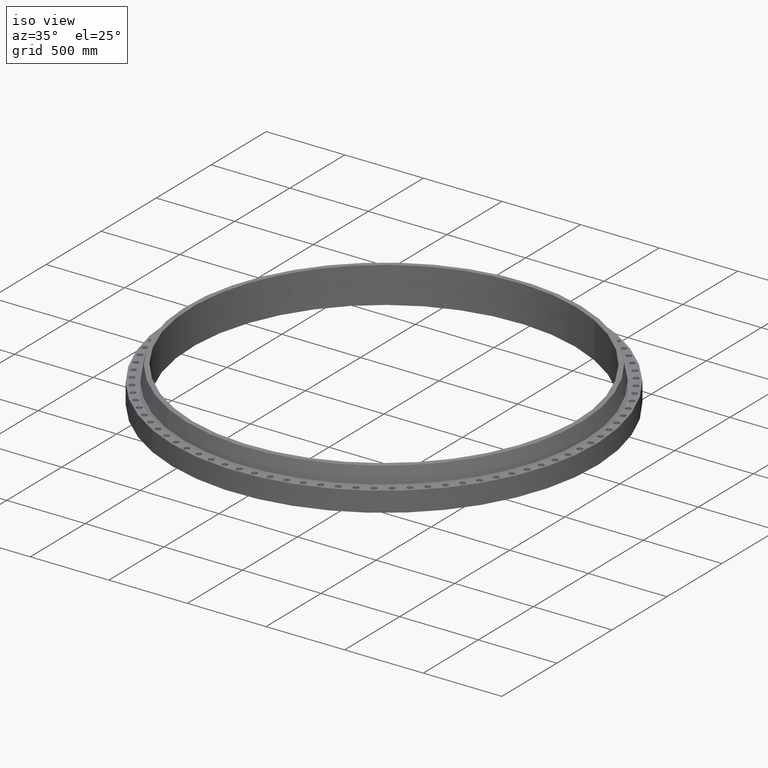
[diagram: clean part render]
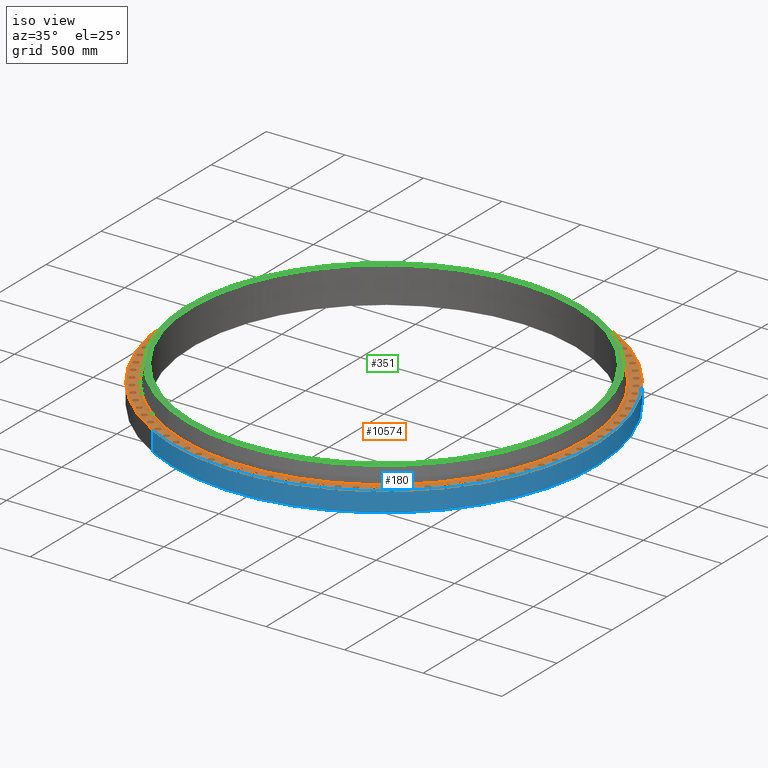
[diagram: same view with three faces highlighted in distinct colors, each labeled with its STEP entity id]
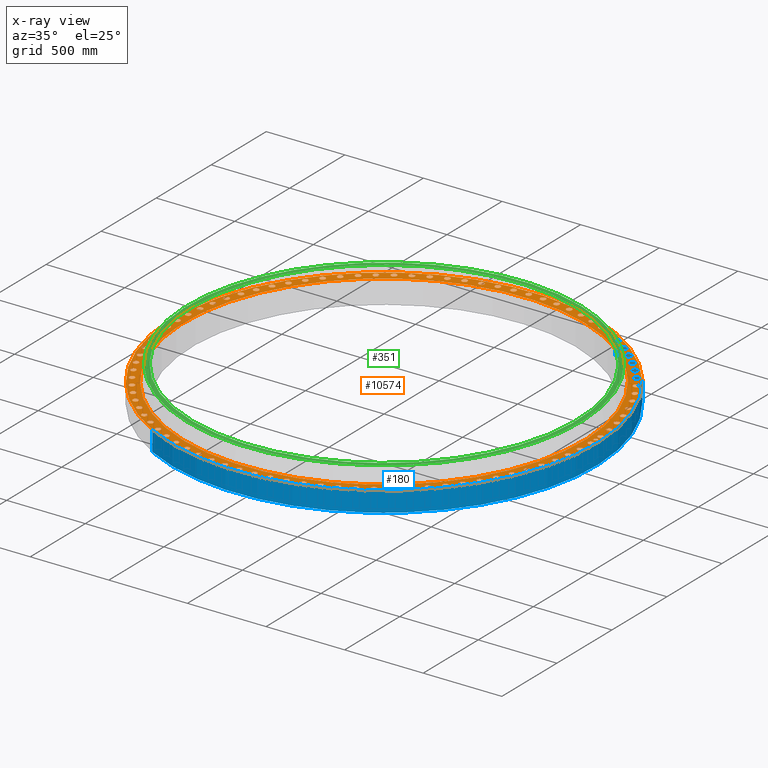
[diagram: x-ray of the same camera — body ghosted, the three highlighted faces saturated]
A machine part, iso view with three faces highlighted in distinct colors.
The next image is the same camera in x-ray (body ghosted, the three faces saturated) — at least one of them is partly hidden behind the body in this view.
Their STEP definitions:

[orange] entity #10574 — the highlighted planar face has unit normal (0, 0, -1).
#65=AXIS2_PLACEMENT_3D('Circle Axis2P3D',#63,#64,$) ;
#110=AXIS2_PLACEMENT_3D('Circle Axis2P3D',#108,#109,$) ;
#147=AXIS2_PLACEMENT_3D('Circle Axis2P3D',#145,#146,$) ;
#171=AXIS2_PLACEMENT_3D('Circle Axis2P3D',#169,#170,$) ;
#188=AXIS2_PLACEMENT_3D('Circle Axis2P3D',#186,#187,$) ;
#223=AXIS2_PLACEMENT_3D('Circle Axis2P3D',#221,#222,$) ;
#6123=AXIS2_PLACEMENT_3D('Circle Axis2P3D',#6121,#6122,$) ;
#6135=AXIS2_PLACEMENT_3D('Circle Axis2P3D',#6133,#6134,$) ;
#6170=AXIS2_PLACEMENT_3D('Circle Axis2P3D',#6168,#6169,$) ;
#6182=AXIS2_PLACEMENT_3D('Circle Axis2P3D',#6180,#6181,$) ;
#6217=AXIS2_PLACEMENT_3D('Circle Axis2P3D',#6215,#6216,$) ;
#6229=AXIS2_PLACEMENT_3D('Circle Axis2P3D',#6227,#6228,$) ;
#6264=AXIS2_PLACEMENT_3D('Circle Axis2P3D',#6262,#6263,$) ;
#6276=AXIS2_PLACEMENT_3D('Circle Axis2P3D',#6274,#6275,$) ;
#6311=AXIS2_PLACEMENT_3D('Circle Axis2P3D',#6309,#6310,$) ;
#6323=AXIS2_PLACEMENT_3D('Circle Axis2P3D',#6321,#6322,$) ;
#6358=AXIS2_PLACEMENT_3D('Circle Axis2P3D',#6356,#6357,$) ;
#6370=AXIS2_PLACEMENT_3D('Circle Axis2P3D',#6368,#6369,$) ;
#6405=AXIS2_PLACEMENT_3D('Circle Axis2P3D',#6403,#6404,$) ;
#6417=AXIS2_PLACEMENT_3D('Circle Axis2P3D',#6415,#6416,$) ;
#6452=AXIS2_PLACEMENT_3D('Circle Axis2P3D',#6450,#6451,$) ;
#6464=AXIS2_PLACEMENT_3D('Circle Axis2P3D',#6462,#6463,$) ;
#6499=AXIS2_PLACEMENT_3D('Circle Axis2P3D',#6497,#6498,$) ;
#6511=AXIS2_PLACEMENT_3D('Circle Axis2P3D',#6509,#6510,$) ;
#6546=AXIS2_PLACEMENT_3D('Circle Axis2P3D',#6544,#6545,$) ;
#6558=AXIS2_PLACEMENT_3D('Circle Axis2P3D',#6556,#6557,$) ;
#6593=AXIS2_PLACEMENT_3D('Circle Axis2P3D',#6591,#6592,$) ;
#6605=AXIS2_PLACEMENT_3D('Circle Axis2P3D',#6603,#6604,$) ;
#6640=AXIS2_PLACEMENT_3D('Circle Axis2P3D',#6638,#6639,$) ;
#6652=AXIS2_PLACEMENT_3D('Circle Axis2P3D',#6650,#6651,$) ;
#6687=AXIS2_PLACEMENT_3D('Circle Axis2P3D',#6685,#6686,$) ;
#6699=AXIS2_PLACEMENT_3D('Circle Axis2P3D',#6697,#6698,$) ;
#6734=AXIS2_PLACEMENT_3D('Circle Axis2P3D',#6732,#6733,$) ;
#6746=AXIS2_PLACEMENT_3D('Circle Axis2P3D',#6744,#6745,$) ;
#6781=AXIS2_PLACEMENT_3D('Circle Axis2P3D',#6779,#6780,$) ;
#6793=AXIS2_PLACEMENT_3D('Circle Axis2P3D',#6791,#6792,$) ;
#6828=AXIS2_PLACEMENT_3D('Circle Axis2P3D',#6826,#6827,$) ;
#6840=AXIS2_PLACEMENT_3D('Circle Axis2P3D',#6838,#6839,$) ;
#6875=AXIS2_PLACEMENT_3D('Circle Axis2P3D',#6873,#6874,$) ;
#6887=AXIS2_PLACEMENT_3D('Circle Axis2P3D',#6885,#6886,$) ;
#6922=AXIS2_PLACEMENT_3D('Circle Axis2P3D',#6920,#6921,$) ;
#6934=AXIS2_PLACEMENT_3D('Circle Axis2P3D',#6932,#6933,$) ;
#6969=AXIS2_PLACEMENT_3D('Circle Axis2P3D',#6967,#6968,$) ;
#6981=AXIS2_PLACEMENT_3D('Circle Axis2P3D',#6979,#6980,$) ;
#7016=AXIS2_PLACEMENT_3D('Circle Axis2P3D',#7014,#7015,$) ;
#7028=AXIS2_PLACEMENT_3D('Circle Axis2P3D',#7026,#7027,$) ;
#7063=AXIS2_PLACEMENT_3D('Circle Axis2P3D',#7061,#7062,$) ;
#7075=AXIS2_PLACEMENT_3D('Circle Axis2P3D',#7073,#7074,$) ;
#7110=AXIS2_PLACEMENT_3D('Circle Axis2P3D',#7108,#7109,$) ;
#7122=AXIS2_PLACEMENT_3D('Circle Axis2P3D',#7120,#7121,$) ;
#7157=AXIS2_PLACEMENT_3D('Circle Axis2P3D',#7155,#7156,$) ;
#7169=AXIS2_PLACEMENT_3D('Circle Axis2P3D',#7167,#7168,$) ;
#7204=AXIS2_PLACEMENT_3D('Circle Axis2P3D',#7202,#7203,$) ;
#7216=AXIS2_PLACEMENT_3D('Circle Axis2P3D',#7214,#7215,$) ;
#7251=AXIS2_PLACEMENT_3D('Circle Axis2P3D',#7249,#7250,$) ;
#7263=AXIS2_PLACEMENT_3D('Circle Axis2P3D',#7261,#7262,$) ;
#7298=AXIS2_PLACEMENT_3D('Circle Axis2P3D',#7296,#7297,$) ;
#7310=AXIS2_PLACEMENT_3D('Circle Axis2P3D',#7308,#7309,$) ;
#7345=AXIS2_PLACEMENT_3D('Circle Axis2P3D',#7343,#7344,$) ;
#7357=AXIS2_PLACEMENT_3D('Circle Axis2P3D',#7355,#7356,$) ;
#7392=AXIS2_PLACEMENT_3D('Circle Axis2P3D',#7390,#7391,$) ;
#7404=AXIS2_PLACEMENT_3D('Circle Axis2P3D',#7402,#7403,$) ;
#7439=AXIS2_PLACEMENT_3D('Circle Axis2P3D',#7437,#7438,$) ;
#7451=AXIS2_PLACEMENT_3D('Circle Axis2P3D',#7449,#7450,$) ;
#7486=AXIS2_PLACEMENT_3D('Circle Axis2P3D',#7484,#7485,$) ;
#7498=AXIS2_PLACEMENT_3D('Circle Axis2P3D',#7496,#7497,$) ;
#7533=AXIS2_PLACEMENT_3D('Circle Axis2P3D',#7531,#7532,$) ;
#7545=AXIS2_PLACEMENT_3D('Circle Axis2P3D',#7543,#7544,$) ;
#7580=AXIS2_PLACEMENT_3D('Circle Axis2P3D',#7578,#7579,$) ;
#7592=AXIS2_PLACEMENT_3D('Circle Axis2P3D',#7590,#7591,$) ;
#7627=AXIS2_PLACEMENT_3D('Circle Axis2P3D',#7625,#7626,$) ;
#7639=AXIS2_PLACEMENT_3D('Circle Axis2P3D',#7637,#7638,$) ;
#7674=AXIS2_PLACEMENT_3D('Circle Axis2P3D',#7672,#7673,$) ;
#7686=AXIS2_PLACEMENT_3D('Circle Axis2P3D',#7684,#7685,$) ;
#7721=AXIS2_PLACEMENT_3D('Circle Axis2P3D',#7719,#7720,$) ;
#7733=AXIS2_PLACEMENT_3D('Circle Axis2P3D',#7731,#7732,$) ;
#7768=AXIS2_PLACEMENT_3D('Circle Axis2P3D',#7766,#7767,$) ;
#7780=AXIS2_PLACEMENT_3D('Circle Axis2P3D',#7778,#7779,$) ;
#7815=AXIS2_PLACEMENT_3D('Circle Axis2P3D',#7813,#7814,$) ;
#7827=AXIS2_PLACEMENT_3D('Circle Axis2P3D',#7825,#7826,$) ;
#7862=AXIS2_PLACEMENT_3D('Circle Axis2P3D',#7860,#7861,$) ;
#7874=AXIS2_PLACEMENT_3D('Circle Axis2P3D',#7872,#7873,$) ;
#7909=AXIS2_PLACEMENT_3D('Circle Axis2P3D',#7907,#7908,$) ;
#7921=AXIS2_PLACEMENT_3D('Circle Axis2P3D',#7919,#7920,$) ;
#7956=AXIS2_PLACEMENT_3D('Circle Axis2P3D',#7954,#7955,$) ;
#7968=AXIS2_PLACEMENT_3D('Circle Axis2P3D',#7966,#7967,$) ;
#8003=AXIS2_PLACEMENT_3D('Circle Axis2P3D',#8001,#8002,$) ;
#8015=AXIS2_PLACEMENT_3D('Circle Axis2P3D',#8013,#8014,$) ;
#8050=AXIS2_PLACEMENT_3D('Circle Axis2P3D',#8048,#8049,$) ;
#8062=AXIS2_PLACEMENT_3D('Circle Axis2P3D',#8060,#8061,$) ;
#8097=AXIS2_PLACEMENT_3D('Circle Axis2P3D',#8095,#8096,$) ;
#8109=AXIS2_PLACEMENT_3D('Circle Axis2P3D',#8107,#8108,$) ;
#8144=AXIS2_PLACEMENT_3D('Circle Axis2P3D',#8142,#8143,$) ;
#8156=AXIS2_PLACEMENT_3D('Circle Axis2P3D',#8154,#8155,$) ;
#8191=AXIS2_PLACEMENT_3D('Circle Axis2P3D',#8189,#8190,$) ;
#8203=AXIS2_PLACEMENT_3D('Circle Axis2P3D',#8201,#8202,$) ;
#8238=AXIS2_PLACEMENT_3D('Circle Axis2P3D',#8236,#8237,$) ;
#8250=AXIS2_PLACEMENT_3D('Circle Axis2P3D',#8248,#8249,$) ;
#8285=AXIS2_PLACEMENT_3D('Circle Axis2P3D',#8283,#8284,$) ;
#8297=AXIS2_PLACEMENT_3D('Circle Axis2P3D',#8295,#8296,$) ;
#8332=AXIS2_PLACEMENT_3D('Circle Axis2P3D',#8330,#8331,$) ;
#8344=AXIS2_PLACEMENT_3D('Circle Axis2P3D',#8342,#8343,$) ;
#8379=AXIS2_PLACEMENT_3D('Circle Axis2P3D',#8377,#8378,$) ;
#8391=AXIS2_PLACEMENT_3D('Circle Axis2P3D',#8389,#8390,$) ;
#8426=AXIS2_PLACEMENT_3D('Circle Axis2P3D',#8424,#8425,$) ;
#8438=AXIS2_PLACEMENT_3D('Circle Axis2P3D',#8436,#8437,$) ;
#8473=AXIS2_PLACEMENT_3D('Circle Axis2P3D',#8471,#8472,$) ;
#8485=AXIS2_PLACEMENT_3D('Circle Axis2P3D',#8483,#8484,$) ;
#8520=AXIS2_PLACEMENT_3D('Circle Axis2P3D',#8518,#8519,$) ;
#8532=AXIS2_PLACEMENT_3D('Circle Axis2P3D',#8530,#8531,$) ;
#8567=AXIS2_PLACEMENT_3D('Circle Axis2P3D',#8565,#8566,$) ;
#8579=AXIS2_PLACEMENT_3D('Circle Axis2P3D',#8577,#8578,$) ;
#8614=AXIS2_PLACEMENT_3D('Circle Axis2P3D',#8612,#8613,$) ;
#8626=AXIS2_PLACEMENT_3D('Circle Axis2P3D',#8624,#8625,$) ;
#8661=AXIS2_PLACEMENT_3D('Circle Axis2P3D',#8659,#8660,$) ;
#8673=AXIS2_PLACEMENT_3D('Circle Axis2P3D',#8671,#8672,$) ;
#8708=AXIS2_PLACEMENT_3D('Circle Axis2P3D',#8706,#8707,$) ;
#8720=AXIS2_PLACEMENT_3D('Circle Axis2P3D',#8718,#8719,$) ;
#8755=AXIS2_PLACEMENT_3D('Circle Axis2P3D',#8753,#8754,$) ;
#8767=AXIS2_PLACEMENT_3D('Circle Axis2P3D',#8765,#8766,$) ;
#8802=AXIS2_PLACEMENT_3D('Circle Axis2P3D',#8800,#8801,$) ;
#8814=AXIS2_PLACEMENT_3D('Circle Axis2P3D',#8812,#8813,$) ;
#8849=AXIS2_PLACEMENT_3D('Circle Axis2P3D',#8847,#8848,$) ;
#8861=AXIS2_PLACEMENT_3D('Circle Axis2P3D',#8859,#8860,$) ;
#8896=AXIS2_PLACEMENT_3D('Circle Axis2P3D',#8894,#8895,$) ;
#8908=AXIS2_PLACEMENT_3D('Circle Axis2P3D',#8906,#8907,$) ;
#8943=AXIS2_PLACEMENT_3D('Circle Axis2P3D',#8941,#8942,$) ;
#8955=AXIS2_PLACEMENT_3D('Circle Axis2P3D',#8953,#8954,$) ;
#8990=AXIS2_PLACEMENT_3D('Circle Axis2P3D',#8988,#8989,$) ;
#9002=AXIS2_PLACEMENT_3D('Circle Axis2P3D',#9000,#9001,$) ;
#9037=AXIS2_PLACEMENT_3D('Circle Axis2P3D',#9035,#9036,$) ;
#9049=AXIS2_PLACEMENT_3D('Circle Axis2P3D',#9047,#9048,$) ;
#9084=AXIS2_PLACEMENT_3D('Circle Axis2P3D',#9082,#9083,$) ;
#9096=AXIS2_PLACEMENT_3D('Circle Axis2P3D',#9094,#9095,$) ;
#9131=AXIS2_PLACEMENT_3D('Circle Axis2P3D',#9129,#9130,$) ;
#9143=AXIS2_PLACEMENT_3D('Circle Axis2P3D',#9141,#9142,$) ;
#9178=AXIS2_PLACEMENT_3D('Circle Axis2P3D',#9176,#9177,$) ;
#9190=AXIS2_PLACEMENT_3D('Circle Axis2P3D',#9188,#9189,$) ;
#9225=AXIS2_PLACEMENT_3D('Circle Axis2P3D',#9223,#9224,$) ;
#9237=AXIS2_PLACEMENT_3D('Circle Axis2P3D',#9235,#9236,$) ;
#9272=AXIS2_PLACEMENT_3D('Circle Axis2P3D',#9270,#9271,$) ;
#9284=AXIS2_PLACEMENT_3D('Circle Axis2P3D',#9282,#9283,$) ;
#9319=AXIS2_PLACEMENT_3D('Circle Axis2P3D',#9317,#9318,$) ;
#9331=AXIS2_PLACEMENT_3D('Circle Axis2P3D',#9329,#9330,$) ;
#9366=AXIS2_PLACEMENT_3D('Circle Axis2P3D',#9364,#9365,$) ;
#9378=AXIS2_PLACEMENT_3D('Circle Axis2P3D',#9376,#9377,$) ;
#9413=AXIS2_PLACEMENT_3D('Circle Axis2P3D',#9411,#9412,$) ;
#9425=AXIS2_PLACEMENT_3D('Circle Axis2P3D',#9423,#9424,$) ;
#9460=AXIS2_PLACEMENT_3D('Circle Axis2P3D',#9458,#9459,$) ;
#9472=AXIS2_PLACEMENT_3D('Circle Axis2P3D',#9470,#9471,$) ;
#9507=AXIS2_PLACEMENT_3D('Circle Axis2P3D',#9505,#9506,$) ;
#9519=AXIS2_PLACEMENT_3D('Circle Axis2P3D',#9517,#9518,$) ;
#9554=AXIS2_PLACEMENT_3D('Circle Axis2P3D',#9552,#9553,$) ;
#9566=AXIS2_PLACEMENT_3D('Circle Axis2P3D',#9564,#9565,$) ;
#9601=AXIS2_PLACEMENT_3D('Circle Axis2P3D',#9599,#9600,$) ;
#9613=AXIS2_PLACEMENT_3D('Circle Axis2P3D',#9611,#9612,$) ;
#9648=AXIS2_PLACEMENT_3D('Circle Axis2P3D',#9646,#9647,$) ;
#9660=AXIS2_PLACEMENT_3D('Circle Axis2P3D',#9658,#9659,$) ;
#9695=AXIS2_PLACEMENT_3D('Circle Axis2P3D',#9693,#9694,$) ;
#9707=AXIS2_PLACEMENT_3D('Circle Axis2P3D',#9705,#9706,$) ;
#9742=AXIS2_PLACEMENT_3D('Circle Axis2P3D',#9740,#9741,$) ;
#9754=AXIS2_PLACEMENT_3D('Circle Axis2P3D',#9752,#9753,$) ;
#9789=AXIS2_PLACEMENT_3D('Circle Axis2P3D',#9787,#9788,$) ;
#9801=AXIS2_PLACEMENT_3D('Circle Axis2P3D',#9799,#9800,$) ;
#9836=AXIS2_PLACEMENT_3D('Circle Axis2P3D',#9834,#9835,$) ;
#9848=AXIS2_PLACEMENT_3D('Circle Axis2P3D',#9846,#9847,$) ;
#9883=AXIS2_PLACEMENT_3D('Circle Axis2P3D',#9881,#9882,$) ;
#9895=AXIS2_PLACEMENT_3D('Circle Axis2P3D',#9893,#9894,$) ;
#9930=AXIS2_PLACEMENT_3D('Circle Axis2P3D',#9928,#9929,$) ;
#9942=AXIS2_PLACEMENT_3D('Circle Axis2P3D',#9940,#9941,$) ;
#9977=AXIS2_PLACEMENT_3D('Circle Axis2P3D',#9975,#9976,$) ;
#9989=AXIS2_PLACEMENT_3D('Circle Axis2P3D',#9987,#9988,$) ;
#10024=AXIS2_PLACEMENT_3D('Circle Axis2P3D',#10022,#10023,$) ;
#10036=AXIS2_PLACEMENT_3D('Circle Axis2P3D',#10034,#10035,$) ;
#10071=AXIS2_PLACEMENT_3D('Circle Axis2P3D',#10069,#10070,$) ;
#10083=AXIS2_PLACEMENT_3D('Circle Axis2P3D',#10081,#10082,$) ;
#10118=AXIS2_PLACEMENT_3D('Circle Axis2P3D',#10116,#10117,$) ;
#10130=AXIS2_PLACEMENT_3D('Circle Axis2P3D',#10128,#10129,$) ;
#10165=AXIS2_PLACEMENT_3D('Circle Axis2P3D',#10163,#10164,$) ;
#10177=AXIS2_PLACEMENT_3D('Circle Axis2P3D',#10175,#10176,$) ;
#10194=AXIS2_PLACEMENT_3D('Plane Axis2P3D',#10191,#10192,#10193) ;
#10558=AXIS2_PLACEMENT_3D('Circle Axis2P3D',#10556,#10557,$) ;
#10567=AXIS2_PLACEMENT_3D('Circle Axis2P3D',#10565,#10566,$) ;
#46=CARTESIAN_POINT('Vertex',(51.1444680325,0.330803621638,5.00000000002)) ;
#60=CARTESIAN_POINT('Vertex',(52.3555319679,-0.330803621638,5.00000000002)) ;
#63=CARTESIAN_POINT('Axis2P3D Location',(51.7500000002,0.,5.00000000002)) ;
#108=CARTESIAN_POINT('Axis2P3D Location',(51.7500000002,0.,5.00000000002)) ;
#142=CARTESIAN_POINT('Vertex',(-25.4095535461,-46.5118757804,5.00000000002)) ;
#145=CARTESIAN_POINT('Axis2P3D Location',(0.,0.,5.00000000002)) ;
#149=CARTESIAN_POINT('Vertex',(25.4095535461,46.5118757804,5.00000000002)) ;
#169=CARTESIAN_POINT('Axis2P3D Location',(0.,0.,5.00000000002)) ;
#186=CARTESIAN_POINT('Axis2P3D Location',(0.,0.,5.00000000002)) ;
#190=CARTESIAN_POINT('Vertex',(23.9954140779,43.9233108469,5.00000000002)) ;
#192=CARTESIAN_POINT('Vertex',(-23.9954140779,-43.9233108469,5.00000000002)) ;
#221=CARTESIAN_POINT('Axis2P3D Location',(0.,0.,5.00000000002)) ;
#6111=CARTESIAN_POINT('Vertex',(-3.97856534652,50.9905585295,5.00000000002)) ;
#6118=CARTESIAN_POINT('Vertex',(-3.40504011463,52.2457353331,5.00000000002)) ;
#6121=CARTESIAN_POINT('Axis2P3D Location',(-3.69180273058,51.6181469313,5.00000000002)) ;
#6133=CARTESIAN_POINT('Axis2P3D Location',(-3.69180273058,51.6181469313,5.00000000002)) ;
#6158=CARTESIAN_POINT('Vertex',(-36.3985136501,35.9306866819,5.00000000002)) ;
#6165=CARTESIAN_POINT('Vertex',(-36.787038203,37.2548651712,5.00000000002)) ;
#6168=CARTESIAN_POINT('Axis2P3D Location',(-36.5927759266,36.5927759266,5.00000000002)) ;
#6180=CARTESIAN_POINT('Axis2P3D Location',(-36.5927759266,36.5927759266,5.00000000002)) ;
#6205=CARTESIAN_POINT('Vertex',(-30.9145593992,40.7450126827,5.00000000002)) ;
#6212=CARTESIAN_POINT('Vertex',(-31.1106790849,42.1110057533,5.00000000002)) ;
#6215=CARTESIAN_POINT('Axis2P3D Location',(-31.0126192421,41.428009218,5.00000000002)) ;
#6227=CARTESIAN_POINT('Axis2P3D Location',(-31.0126192421,41.428009218,5.00000000002)) ;
#6252=CARTESIAN_POINT('Vertex',(51.0377570498,-3.31864380267,5.00000000002)) ;
#6259=CARTESIAN_POINT('Vertex',(52.1985368128,-4.06496165848,5.00000000002)) ;
#6262=CARTESIAN_POINT('Axis2P3D Location',(51.6181469313,-3.69180273058,5.00000000002)) ;
#6274=CARTESIAN_POINT('Axis2P3D Location',(51.6181469313,-3.69180273058,5.00000000002)) ;
#6299=CARTESIAN_POINT('Vertex',(-46.6600652985,20.9452702943,5.00000000002)) ;
#6306=CARTESIAN_POINT('Vertex',(-47.486846221,22.0501835516,5.00000000002)) ;
#6309=CARTESIAN_POINT('Axis2P3D Location',(-47.0734557598,21.4977269229,5.00000000002)) ;
#6321=CARTESIAN_POINT('Axis2P3D Location',(-47.0734557598,21.4977269229,5.00000000002)) ;
#6346=CARTESIAN_POINT('Vertex',(50.6709693561,-6.95118017887,5.00000000002)) ;
#6353=CARTESIAN_POINT('Vertex',(51.775549879,-7.77840558247,5.00000000002)) ;
#6356=CARTESIAN_POINT('Axis2P3D Location',(51.2232596175,-7.36479288067,5.00000000002)) ;
#6368=CARTESIAN_POINT('Axis2P3D Location',(51.2232596175,-7.36479288067,5.00000000002)) ;
#6393=CARTESIAN_POINT('Vertex',(27.37249729,43.2043103575,5.00000000002)) ;
#6400=CARTESIAN_POINT('Vertex',(28.5838273168,43.8654302908,5.00000000002)) ;
#6403=CARTESIAN_POINT('Axis2P3D Location',(27.9781623034,43.5348703242,5.00000000002)) ;
#6415=CARTESIAN_POINT('Axis2P3D Location',(27.9781623034,43.5348703242,5.00000000002)) ;
#6440=CARTESIAN_POINT('Vertex',(50.0459740173,-10.5482949342,5.00000000002)) ;
#6447=CARTESIAN_POINT('Vertex',(51.0887266111,-11.4522125346,5.00000000002)) ;
#6450=CARTESIAN_POINT('Axis2P3D Location',(50.5673503142,-11.0002537344,5.00000000002)) ;
#6462=CARTESIAN_POINT('Axis2P3D Location',(50.5673503142,-11.0002537344,5.00000000002)) ;
#6487=CARTESIAN_POINT('Vertex',(-43.2043103575,27.37249729,5.00000000002)) ;
#6494=CARTESIAN_POINT('Vertex',(-43.8654302908,28.5838273168,5.00000000002)) ;
#6497=CARTESIAN_POINT('Axis2P3D Location',(-43.5348703242,27.9781623034,5.00000000002)) ;
#6509=CARTESIAN_POINT('Axis2P3D Location',(-43.5348703242,27.9781623034,5.00000000002)) ;
#6534=CARTESIAN_POINT('Vertex',(49.1659558666,-14.0916579965,5.00000000002)) ;
#6541=CARTESIAN_POINT('Vertex',(50.1415669029,-15.0676616367,5.00000000002)) ;
#6544=CARTESIAN_POINT('Axis2P3D Location',(49.6537613847,-14.5796598166,5.00000000002)) ;
#6556=CARTESIAN_POINT('Axis2P3D Location',(49.6537613847,-14.5796598166,5.00000000002)) ;
#6581=CARTESIAN_POINT('Vertex',(-51.1444680325,-0.330803621638,5.00000000002)) ;
#6588=CARTESIAN_POINT('Vertex',(-52.3555319679,0.330803621638,5.00000000002)) ;
#6591=CARTESIAN_POINT('Axis2P3D Location',(-51.7500000002,-6.33754718561E-015,5.00000000002)) ;
#6603=CARTESIAN_POINT('Axis2P3D Location',(-51.7500000002,-6.33754718561E-015,5.00000000002)) ;
#6628=CARTESIAN_POINT('Vertex',(48.0353992746,-17.5632131997,5.00000000002)) ;
#6635=CARTESIAN_POINT('Vertex',(48.9388972633,-18.606329389,5.00000000002)) ;
#6638=CARTESIAN_POINT('Axis2P3D Location',(48.4871482689,-18.0847712943,5.00000000002)) ;
#6650=CARTESIAN_POINT('Axis2P3D Location',(48.4871482689,-18.0847712943,5.00000000002)) ;
#6675=CARTESIAN_POINT('Vertex',(38.4357796437,33.7425085693,5.00000000002)) ;
#6682=CARTESIAN_POINT('Vertex',(39.7843013023,34.0355773944,5.00000000002)) ;
#6685=CARTESIAN_POINT('Axis2P3D Location',(39.110040473,33.8890429818,5.00000000002)) ;
#6697=CARTESIAN_POINT('Axis2P3D Location',(39.110040473,33.8890429818,5.00000000002)) ;
#6722=CARTESIAN_POINT('Vertex',(46.6600652985,-20.9452702943,5.00000000002)) ;
#6729=CARTESIAN_POINT('Vertex',(47.486846221,-22.0501835516,5.00000000002)) ;
#6732=CARTESIAN_POINT('Axis2P3D Location',(47.0734557598,-21.4977269229,5.00000000002)) ;
#6744=CARTESIAN_POINT('Axis2P3D Location',(47.0734557598,-21.4977269229,5.00000000002)) ;
#6769=CARTESIAN_POINT('Vertex',(46.385223717,21.5470894111,5.00000000002)) ;
#6776=CARTESIAN_POINT('Vertex',(47.7616878026,21.4483644348,5.00000000002)) ;
#6779=CARTESIAN_POINT('Axis2P3D Location',(47.0734557598,21.4977269229,5.00000000002)) ;
#6791=CARTESIAN_POINT('Axis2P3D Location',(47.0734557598,21.4977269229,5.00000000002)) ;
#6816=CARTESIAN_POINT('Vertex',(45.0469623252,-24.2205950925,5.00000000002)) ;
#6823=CARTESIAN_POINT('Vertex',(45.7928130954,-25.3816750332,5.00000000002)) ;
#6826=CARTESIAN_POINT('Axis2P3D Location',(45.4198877103,-24.8011350629,5.00000000002)) ;
#6838=CARTESIAN_POINT('Axis2P3D Location',(45.4198877103,-24.8011350629,5.00000000002)) ;
#6863=CARTESIAN_POINT('Vertex',(50.5768128282,7.60605321437,5.00000000002)) ;
#6870=CARTESIAN_POINT('Vertex',(51.8697064068,7.12353254698,5.00000000002)) ;
#6873=CARTESIAN_POINT('Axis2P3D Location',(51.2232596175,7.36479288067,5.00000000002)) ;
#6885=CARTESIAN_POINT('Axis2P3D Location',(51.2232596175,7.36479288067,5.00000000002)) ;
#6910=CARTESIAN_POINT('Vertex',(43.2043103575,-27.37249729,5.00000000002)) ;
#6917=CARTESIAN_POINT('Vertex',(43.8654302908,-28.5838273168,5.00000000002)) ;
#6920=CARTESIAN_POINT('Axis2P3D Location',(43.5348703242,-27.9781623034,5.00000000002)) ;
#6932=CARTESIAN_POINT('Axis2P3D Location',(43.5348703242,-27.9781623034,5.00000000002)) ;
#6957=CARTESIAN_POINT('Vertex',(-7.60605321437,50.5768128282,5.00000000002)) ;
#6964=CARTESIAN_POINT('Vertex',(-7.12353254698,51.8697064068,5.00000000002)) ;
#6967=CARTESIAN_POINT('Axis2P3D Location',(-7.36479288067,51.2232596175,5.00000000002)) ;
#6979=CARTESIAN_POINT('Axis2P3D Location',(-7.36479288067,51.2232596175,5.00000000002)) ;
#7004=CARTESIAN_POINT('Vertex',(41.1414991276,-30.3849155157,5.00000000002)) ;
#7011=CARTESIAN_POINT('Vertex',(41.7145193084,-31.6403229685,5.00000000002)) ;
#7014=CARTESIAN_POINT('Axis2P3D Location',(41.428009218,-31.0126192421,5.00000000002)) ;
#7026=CARTESIAN_POINT('Axis2P3D Location',(41.428009218,-31.0126192421,5.00000000002)) ;
#7051=CARTESIAN_POINT('Vertex',(24.2205950925,45.0469623252,5.00000000002)) ;
#7058=CARTESIAN_POINT('Vertex',(25.3816750332,45.7928130954,5.00000000002)) ;
#7061=CARTESIAN_POINT('Axis2P3D Location',(24.8011350629,45.4198877103,5.00000000002)) ;
#7073=CARTESIAN_POINT('Axis2P3D Location',(24.8011350629,45.4198877103,5.00000000002)) ;
#7098=CARTESIAN_POINT('Vertex',(38.8690402486,-33.2424991768,5.00000000002)) ;
#7105=CARTESIAN_POINT('Vertex',(39.3510406974,-34.5355867869,5.00000000002)) ;
#7108=CARTESIAN_POINT('Axis2P3D Location',(39.110040473,-33.8890429818,5.00000000002)) ;
#7120=CARTESIAN_POINT('Axis2P3D Location',(39.110040473,-33.8890429818,5.00000000002)) ;
#7145=CARTESIAN_POINT('Vertex',(-51.0377570498,3.31864380267,5.00000000002)) ;
#7152=CARTESIAN_POINT('Vertex',(-52.1985368128,4.06496165848,5.00000000002)) ;
#7155=CARTESIAN_POINT('Axis2P3D Location',(-51.6181469313,3.69180273058,5.00000000002)) ;
#7167=CARTESIAN_POINT('Axis2P3D Location',(-51.6181469313,3.69180273058,5.00000000002)) ;
#7192=CARTESIAN_POINT('Vertex',(36.3985136501,-35.9306866819,5.00000000002)) ;
#7199=CARTESIAN_POINT('Vertex',(36.787038203,-37.2548651712,5.00000000002)) ;
#7202=CARTESIAN_POINT('Axis2P3D Location',(36.5927759266,-36.5927759266,5.00000000002)) ;
#7214=CARTESIAN_POINT('Axis2P3D Location',(36.5927759266,-36.5927759266,5.00000000002)) ;
#7239=CARTESIAN_POINT('Vertex',(40.7450126827,30.9145593992,5.00000000002)) ;
#7246=CARTESIAN_POINT('Vertex',(42.1110057533,31.1106790849,5.00000000002)) ;
#7249=CARTESIAN_POINT('Axis2P3D Location',(41.428009218,31.0126192421,5.00000000002)) ;
#7261=CARTESIAN_POINT('Axis2P3D Location',(41.428009218,31.0126192421,5.00000000002)) ;
#7286=CARTESIAN_POINT('Vertex',(33.7425085693,-38.4357796437,5.00000000002)) ;
#7293=CARTESIAN_POINT('Vertex',(34.0355773944,-39.7843013023,5.00000000002)) ;
#7296=CARTESIAN_POINT('Axis2P3D Location',(33.8890429818,-39.110040473,5.00000000002)) ;
#7308=CARTESIAN_POINT('Axis2P3D Location',(33.8890429818,-39.110040473,5.00000000002)) ;
#7333=CARTESIAN_POINT('Vertex',(-50.9905585295,-3.97856534652,5.00000000002)) ;
#7340=CARTESIAN_POINT('Vertex',(-52.2457353331,-3.40504011463,5.00000000002)) ;
#7343=CARTESIAN_POINT('Axis2P3D Location',(-51.6181469313,-3.69180273058,5.00000000002)) ;
#7355=CARTESIAN_POINT('Axis2P3D Location',(-51.6181469313,-3.69180273058,5.00000000002)) ;
#7380=CARTESIAN_POINT('Vertex',(30.9145593992,-40.7450126827,5.00000000002)) ;
#7387=CARTESIAN_POINT('Vertex',(31.1106790849,-42.1110057533,5.00000000002)) ;
#7390=CARTESIAN_POINT('Axis2P3D Location',(31.0126192421,-41.428009218,5.00000000002)) ;
#7402=CARTESIAN_POINT('Axis2P3D Location',(31.0126192421,-41.428009218,5.00000000002)) ;
#7427=CARTESIAN_POINT('Vertex',(42.8466184767,27.9290767208,5.00000000002)) ;
#7434=CARTESIAN_POINT('Vertex',(44.2231221717,28.0272478861,5.00000000002)) ;
#7437=CARTESIAN_POINT('Axis2P3D Location',(43.5348703242,27.9781623034,5.00000000002)) ;
#7449=CARTESIAN_POINT('Axis2P3D Location',(43.5348703242,27.9781623034,5.00000000002)) ;
#7474=CARTESIAN_POINT('Vertex',(27.9290767208,-42.8466184767,5.00000000002)) ;
#7481=CARTESIAN_POINT('Vertex',(28.0272478861,-44.2231221717,5.00000000002)) ;
#7484=CARTESIAN_POINT('Axis2P3D Location',(27.9781623034,-43.5348703242,5.00000000002)) ;
#7496=CARTESIAN_POINT('Axis2P3D Location',(27.9781623034,-43.5348703242,5.00000000002)) ;
#7521=CARTESIAN_POINT('Vertex',(14.0916579965,49.1659558666,5.00000000002)) ;
#7528=CARTESIAN_POINT('Vertex',(15.0676616367,50.1415669029,5.00000000002)) ;
#7531=CARTESIAN_POINT('Axis2P3D Location',(14.5796598166,49.6537613847,5.00000000002)) ;
#7543=CARTESIAN_POINT('Axis2P3D Location',(14.5796598166,49.6537613847,5.00000000002)) ;
#7568=CARTESIAN_POINT('Vertex',(24.8012738693,-44.7298877242,5.00000000002)) ;
#7575=CARTESIAN_POINT('Vertex',(24.8009962564,-46.1098876963,5.00000000002)) ;
#7578=CARTESIAN_POINT('Axis2P3D Location',(24.8011350629,-45.4198877103,5.00000000002)) ;
#7590=CARTESIAN_POINT('Axis2P3D Location',(24.8011350629,-45.4198877103,5.00000000002)) ;
#7615=CARTESIAN_POINT('Vertex',(-18.1831059243,47.8041912421,5.00000000002)) ;
#7622=CARTESIAN_POINT('Vertex',(-17.9864366643,49.1701052958,5.00000000002)) ;
#7625=CARTESIAN_POINT('Axis2P3D Location',(-18.0847712943,48.4871482689,5.00000000002)) ;
#7637=CARTESIAN_POINT('Axis2P3D Location',(-18.0847712943,48.4871482689,5.00000000002)) ;
#7662=CARTESIAN_POINT('Vertex',(21.5470894111,-46.385223717,5.00000000002)) ;
#7669=CARTESIAN_POINT('Vertex',(21.4483644348,-47.7616878026,5.00000000002)) ;
#7672=CARTESIAN_POINT('Axis2P3D Location',(21.4977269229,-47.0734557598,5.00000000002)) ;
#7684=CARTESIAN_POINT('Axis2P3D Location',(21.4977269229,-47.0734557598,5.00000000002)) ;
#7709=CARTESIAN_POINT('Vertex',(-50.0459740173,10.5482949342,5.00000000002)) ;
#7716=CARTESIAN_POINT('Vertex',(-51.0887266111,11.4522125346,5.00000000002)) ;
#7719=CARTESIAN_POINT('Axis2P3D Location',(-50.5673503142,11.0002537344,5.00000000002)) ;
#7731=CARTESIAN_POINT('Axis2P3D Location',(-50.5673503142,11.0002537344,5.00000000002)) ;
#7756=CARTESIAN_POINT('Vertex',(18.1831059243,-47.8041912421,5.00000000002)) ;
#7763=CARTESIAN_POINT('Vertex',(17.9864366643,-49.1701052958,5.00000000002)) ;
#7766=CARTESIAN_POINT('Axis2P3D Location',(18.0847712943,-48.4871482689,5.00000000002)) ;
#7778=CARTESIAN_POINT('Axis2P3D Location',(18.0847712943,-48.4871482689,5.00000000002)) ;
#7803=CARTESIAN_POINT('Vertex',(44.7298877242,24.8012738693,5.00000000002)) ;
#7810=CARTESIAN_POINT('Vertex',(46.1098876963,24.8009962564,5.00000000002)) ;
#7813=CARTESIAN_POINT('Axis2P3D Location',(45.4198877103,24.8011350629,5.00000000002)) ;
#7825=CARTESIAN_POINT('Axis2P3D Location',(45.4198877103,24.8011350629,5.00000000002)) ;
#7850=CARTESIAN_POINT('Vertex',(14.7264654977,-48.9795595663,5.00000000002)) ;
#7857=CARTESIAN_POINT('Vertex',(14.4328541355,-50.3279632032,5.00000000002)) ;
#7860=CARTESIAN_POINT('Axis2P3D Location',(14.5796598166,-49.6537613847,5.00000000002)) ;
#7872=CARTESIAN_POINT('Axis2P3D Location',(14.5796598166,-49.6537613847,5.00000000002)) ;
#7897=CARTESIAN_POINT('Vertex',(10.5482949342,50.0459740173,5.00000000002)) ;
#7904=CARTESIAN_POINT('Vertex',(11.4522125346,51.0887266111,5.00000000002)) ;
#7907=CARTESIAN_POINT('Axis2P3D Location',(11.0002537344,50.5673503142,5.00000000002)) ;
#7919=CARTESIAN_POINT('Axis2P3D Location',(11.0002537344,50.5673503142,5.00000000002)) ;
#7944=CARTESIAN_POINT('Vertex',(11.1947823785,-49.9053392821,5.00000000002)) ;
#7951=CARTESIAN_POINT('Vertex',(10.8057250903,-51.2293613463,5.00000000002)) ;
#7954=CARTESIAN_POINT('Axis2P3D Location',(11.0002537344,-50.5673503142,5.00000000002)) ;
#7966=CARTESIAN_POINT('Axis2P3D Location',(11.0002537344,-50.5673503142,5.00000000002)) ;
#7991=CARTESIAN_POINT('Vertex',(-41.1414991276,30.3849155157,5.00000000002)) ;
#7998=CARTESIAN_POINT('Vertex',(-41.7145193084,31.6403229685,5.00000000002)) ;
#8001=CARTESIAN_POINT('Axis2P3D Location',(-41.428009218,31.0126192421,5.00000000002)) ;
#8013=CARTESIAN_POINT('Axis2P3D Location',(-41.428009218,31.0126192421,5.00000000002)) ;
#8038=CARTESIAN_POINT('Vertex',(7.60605321437,-50.5768128282,5.00000000002)) ;
#8045=CARTESIAN_POINT('Vertex',(7.12353254698,-51.8697064068,5.00000000002)) ;
#8048=CARTESIAN_POINT('Axis2P3D Location',(7.36479288067,-51.2232596175,5.00000000002)) ;
#8060=CARTESIAN_POINT('Axis2P3D Location',(7.36479288067,-51.2232596175,5.00000000002)) ;
#8085=CARTESIAN_POINT('Vertex',(-21.5470894111,46.385223717,5.00000000002)) ;
#8092=CARTESIAN_POINT('Vertex',(-21.4483644348,47.7616878026,5.00000000002)) ;
#8095=CARTESIAN_POINT('Axis2P3D Location',(-21.4977269229,47.0734557598,5.00000000002)) ;
#8107=CARTESIAN_POINT('Axis2P3D Location',(-21.4977269229,47.0734557598,5.00000000002)) ;
#8132=CARTESIAN_POINT('Vertex',(3.97856534652,-50.9905585295,5.00000000002)) ;
#8139=CARTESIAN_POINT('Vertex',(3.40504011463,-52.2457353331,5.00000000002)) ;
#8142=CARTESIAN_POINT('Axis2P3D Location',(3.69180273058,-51.6181469313,5.00000000002)) ;
#8154=CARTESIAN_POINT('Axis2P3D Location',(3.69180273058,-51.6181469313,5.00000000002)) ;
#8179=CARTESIAN_POINT('Vertex',(50.9905585295,3.97856534652,5.00000000002)) ;
#8186=CARTESIAN_POINT('Vertex',(52.2457353331,3.40504011463,5.00000000002)) ;
#8189=CARTESIAN_POINT('Axis2P3D Location',(51.6181469313,3.69180273058,5.00000000002)) ;
#8201=CARTESIAN_POINT('Axis2P3D Location',(51.6181469313,3.69180273058,5.00000000002)) ;
#8226=CARTESIAN_POINT('Vertex',(0.330803621638,-51.1444680325,5.00000000002)) ;
#8233=CARTESIAN_POINT('Vertex',(-0.330803621638,-52.3555319679,5.00000000002)) ;
#8236=CARTESIAN_POINT('Axis2P3D Location',(-5.78294591283E-015,-51.7500000002,5.00000000002)) ;
#8248=CARTESIAN_POINT('Axis2P3D Location',(-5.78294591283E-015,-51.7500000002,5.00000000002)) ;
#8273=CARTESIAN_POINT('Vertex',(3.31864380267,51.0377570498,5.00000000002)) ;
#8280=CARTESIAN_POINT('Vertex',(4.06496165848,52.1985368128,5.00000000002)) ;
#8283=CARTESIAN_POINT('Axis2P3D Location',(3.69180273058,51.6181469313,5.00000000002)) ;
#8295=CARTESIAN_POINT('Axis2P3D Location',(3.69180273058,51.6181469313,5.00000000002)) ;
#8320=CARTESIAN_POINT('Vertex',(-3.31864380267,-51.0377570498,5.00000000002)) ;
#8327=CARTESIAN_POINT('Vertex',(-4.06496165848,-52.1985368128,5.00000000002)) ;
#8330=CARTESIAN_POINT('Axis2P3D Location',(-3.69180273058,-51.6181469313,5.00000000002)) ;
#8342=CARTESIAN_POINT('Axis2P3D Location',(-3.69180273058,-51.6181469313,5.00000000002)) ;
#8367=CARTESIAN_POINT('Vertex',(-24.8012738693,44.7298877242,5.00000000002)) ;
#8374=CARTESIAN_POINT('Vertex',(-24.8009962564,46.1098876963,5.00000000002)) ;
#8377=CARTESIAN_POINT('Axis2P3D Location',(-24.8011350629,45.4198877103,5.00000000002)) ;
#8389=CARTESIAN_POINT('Axis2P3D Location',(-24.8011350629,45.4198877103,5.00000000002)) ;
#8414=CARTESIAN_POINT('Vertex',(-6.95118017887,-50.6709693561,5.00000000002)) ;
#8421=CARTESIAN_POINT('Vertex',(-7.77840558247,-51.775549879,5.00000000002)) ;
#8424=CARTESIAN_POINT('Axis2P3D Location',(-7.36479288067,-51.2232596175,5.00000000002)) ;
#8436=CARTESIAN_POINT('Axis2P3D Location',(-7.36479288067,-51.2232596175,5.00000000002)) ;
#8461=CARTESIAN_POINT('Vertex',(6.95118017887,50.6709693561,5.00000000002)) ;
#8468=CARTESIAN_POINT('Vertex',(7.77840558247,51.775549879,5.00000000002)) ;
#8471=CARTESIAN_POINT('Axis2P3D Location',(7.36479288067,51.2232596175,5.00000000002)) ;
#8483=CARTESIAN_POINT('Axis2P3D Location',(7.36479288067,51.2232596175,5.00000000002)) ;
#8508=CARTESIAN_POINT('Vertex',(-10.5482949342,-50.0459740173,5.00000000002)) ;
#8515=CARTESIAN_POINT('Vertex',(-11.4522125346,-51.0887266111,5.00000000002)) ;
#8518=CARTESIAN_POINT('Axis2P3D Location',(-11.0002537344,-50.5673503142,5.00000000002)) ;
#8530=CARTESIAN_POINT('Axis2P3D Location',(-11.0002537344,-50.5673503142,5.00000000002)) ;
#8555=CARTESIAN_POINT('Vertex',(17.5632131997,48.0353992746,5.00000000002)) ;
#8562=CARTESIAN_POINT('Vertex',(18.606329389,48.9388972633,5.00000000002)) ;
#8565=CARTESIAN_POINT('Axis2P3D Location',(18.0847712943,48.4871482689,5.00000000002)) ;
#8577=CARTESIAN_POINT('Axis2P3D Location',(18.0847712943,48.4871482689,5.00000000002)) ;
#8602=CARTESIAN_POINT('Vertex',(-14.0916579965,-49.1659558666,5.00000000002)) ;
#8609=CARTESIAN_POINT('Vertex',(-15.0676616367,-50.1415669029,5.00000000002)) ;
#8612=CARTESIAN_POINT('Axis2P3D Location',(-14.5796598166,-49.6537613847,5.00000000002)) ;
#8624=CARTESIAN_POINT('Axis2P3D Location',(-14.5796598166,-49.6537613847,5.00000000002)) ;
#8649=CARTESIAN_POINT('Vertex',(-11.1947823785,49.9053392821,5.00000000002)) ;
#8656=CARTESIAN_POINT('Vertex',(-10.8057250903,51.2293613463,5.00000000002)) ;
#8659=CARTESIAN_POINT('Axis2P3D Location',(-11.0002537344,50.5673503142,5.00000000002)) ;
#8671=CARTESIAN_POINT('Axis2P3D Location',(-11.0002537344,50.5673503142,5.00000000002)) ;
#8696=CARTESIAN_POINT('Vertex',(-17.5632131997,-48.0353992746,5.00000000002)) ;
#8703=CARTESIAN_POINT('Vertex',(-18.606329389,-48.9388972633,5.00000000002)) ;
#8706=CARTESIAN_POINT('Axis2P3D Location',(-18.0847712943,-48.4871482689,5.00000000002)) ;
#8718=CARTESIAN_POINT('Axis2P3D Location',(-18.0847712943,-48.4871482689,5.00000000002)) ;
#8743=CARTESIAN_POINT('Vertex',(-48.0353992746,17.5632131997,5.00000000002)) ;
#8750=CARTESIAN_POINT('Vertex',(-48.9388972633,18.606329389,5.00000000002)) ;
#8753=CARTESIAN_POINT('Axis2P3D Location',(-48.4871482689,18.0847712943,5.00000000002)) ;
#8765=CARTESIAN_POINT('Axis2P3D Location',(-48.4871482689,18.0847712943,5.00000000002)) ;
#8790=CARTESIAN_POINT('Vertex',(-20.9452702943,-46.6600652985,5.00000000002)) ;
#8797=CARTESIAN_POINT('Vertex',(-22.0501835516,-47.486846221,5.00000000002)) ;
#8800=CARTESIAN_POINT('Axis2P3D Location',(-21.4977269229,-47.0734557598,5.00000000002)) ;
#8812=CARTESIAN_POINT('Axis2P3D Location',(-21.4977269229,-47.0734557598,5.00000000002)) ;
#8837=CARTESIAN_POINT('Vertex',(49.9053392821,11.1947823785,5.00000000002)) ;
#8844=CARTESIAN_POINT('Vertex',(51.2293613463,10.8057250903,5.00000000002)) ;
#8847=CARTESIAN_POINT('Axis2P3D Location',(50.5673503142,11.0002537344,5.00000000002)) ;
#8859=CARTESIAN_POINT('Axis2P3D Location',(50.5673503142,11.0002537344,5.00000000002)) ;
#8884=CARTESIAN_POINT('Vertex',(-24.2205950925,-45.0469623252,5.00000000002)) ;
#8891=CARTESIAN_POINT('Vertex',(-25.3816750332,-45.7928130954,5.00000000002)) ;
#8894=CARTESIAN_POINT('Axis2P3D Location',(-24.8011350629,-45.4198877103,5.00000000002)) ;
#8906=CARTESIAN_POINT('Axis2P3D Location',(-24.8011350629,-45.4198877103,5.00000000002)) ;
#8931=CARTESIAN_POINT('Vertex',(-27.9290767208,42.8466184767,5.00000000002)) ;
#8938=CARTESIAN_POINT('Vertex',(-28.0272478861,44.2231221717,5.00000000002)) ;
#8941=CARTESIAN_POINT('Axis2P3D Location',(-27.9781623034,43.5348703242,5.00000000002)) ;
#8953=CARTESIAN_POINT('Axis2P3D Location',(-27.9781623034,43.5348703242,5.00000000002)) ;
#8978=CARTESIAN_POINT('Vertex',(-27.37249729,-43.2043103575,5.00000000002)) ;
#8985=CARTESIAN_POINT('Vertex',(-28.5838273168,-43.8654302908,5.00000000002)) ;
#8988=CARTESIAN_POINT('Axis2P3D Location',(-27.9781623034,-43.5348703242,5.00000000002)) ;
#9000=CARTESIAN_POINT('Axis2P3D Location',(-27.9781623034,-43.5348703242,5.00000000002)) ;
#9025=CARTESIAN_POINT('Vertex',(-38.8690402486,33.2424991768,5.00000000002)) ;
#9032=CARTESIAN_POINT('Vertex',(-39.3510406974,34.5355867869,5.00000000002)) ;
#9035=CARTESIAN_POINT('Axis2P3D Location',(-39.110040473,33.8890429818,5.00000000002)) ;
#9047=CARTESIAN_POINT('Axis2P3D Location',(-39.110040473,33.8890429818,5.00000000002)) ;
#9072=CARTESIAN_POINT('Vertex',(-30.3849155157,-41.1414991276,5.00000000002)) ;
#9079=CARTESIAN_POINT('Vertex',(-31.6403229685,-41.7145193084,5.00000000002)) ;
#9082=CARTESIAN_POINT('Axis2P3D Location',(-31.0126192421,-41.428009218,5.00000000002)) ;
#9094=CARTESIAN_POINT('Axis2P3D Location',(-31.0126192421,-41.428009218,5.00000000002)) ;
#9119=CARTESIAN_POINT('Vertex',(33.2424991768,38.8690402486,5.00000000002)) ;
#9126=CARTESIAN_POINT('Vertex',(34.5355867869,39.3510406974,5.00000000002)) ;
#9129=CARTESIAN_POINT('Axis2P3D Location',(33.8890429818,39.110040473,5.00000000002)) ;
#9141=CARTESIAN_POINT('Axis2P3D Location',(33.8890429818,39.110040473,5.00000000002)) ;
#9166=CARTESIAN_POINT('Vertex',(-33.2424991768,-38.8690402486,5.00000000002)) ;
#9173=CARTESIAN_POINT('Vertex',(-34.5355867869,-39.3510406974,5.00000000002)) ;
#9176=CARTESIAN_POINT('Axis2P3D Location',(-33.8890429818,-39.110040473,5.00000000002)) ;
#9188=CARTESIAN_POINT('Axis2P3D Location',(-33.8890429818,-39.110040473,5.00000000002)) ;
#9213=CARTESIAN_POINT('Vertex',(30.3849155157,41.1414991276,5.00000000002)) ;
#9220=CARTESIAN_POINT('Vertex',(31.6403229685,41.7145193084,5.00000000002)) ;
#9223=CARTESIAN_POINT('Axis2P3D Location',(31.0126192421,41.428009218,5.00000000002)) ;
#9235=CARTESIAN_POINT('Axis2P3D Location',(31.0126192421,41.428009218,5.00000000002)) ;
#9260=CARTESIAN_POINT('Vertex',(-35.9306866819,-36.3985136501,5.00000000002)) ;
#9267=CARTESIAN_POINT('Vertex',(-37.2548651712,-36.787038203,5.00000000002)) ;
#9270=CARTESIAN_POINT('Axis2P3D Location',(-36.5927759266,-36.5927759266,5.00000000002)) ;
#9282=CARTESIAN_POINT('Axis2P3D Location',(-36.5927759266,-36.5927759266,5.00000000002)) ;
#9307=CARTESIAN_POINT('Vertex',(48.9795595663,14.7264654977,5.00000000002)) ;
#9314=CARTESIAN_POINT('Vertex',(50.3279632032,14.4328541355,5.00000000002)) ;
#9317=CARTESIAN_POINT('Axis2P3D Location',(49.6537613847,14.5796598166,5.00000000002)) ;
#9329=CARTESIAN_POINT('Axis2P3D Location',(49.6537613847,14.5796598166,5.00000000002)) ;
#9354=CARTESIAN_POINT('Vertex',(-38.4357796437,-33.7425085693,5.00000000002)) ;
#9361=CARTESIAN_POINT('Vertex',(-39.7843013023,-34.0355773944,5.00000000002)) ;
#9364=CARTESIAN_POINT('Axis2P3D Location',(-39.110040473,-33.8890429818,5.00000000002)) ;
#9376=CARTESIAN_POINT('Axis2P3D Location',(-39.110040473,-33.8890429818,5.00000000002)) ;
#9401=CARTESIAN_POINT('Vertex',(-0.330803621638,51.1444680325,5.00000000002)) ;
#9408=CARTESIAN_POINT('Vertex',(0.330803621638,52.3555319679,5.00000000002)) ;
#9411=CARTESIAN_POINT('Axis2P3D Location',(-9.50632077842E-015,51.7500000002,5.00000000002)) ;
#9423=CARTESIAN_POINT('Axis2P3D Location',(-9.50632077842E-015,51.7500000002,5.00000000002)) ;
#9448=CARTESIAN_POINT('Vertex',(-40.7450126827,-30.9145593992,5.00000000002)) ;
#9455=CARTESIAN_POINT('Vertex',(-42.1110057533,-31.1106790849,5.00000000002)) ;
#9458=CARTESIAN_POINT('Axis2P3D Location',(-41.428009218,-31.0126192421,5.00000000002)) ;
#9470=CARTESIAN_POINT('Axis2P3D Location',(-41.428009218,-31.0126192421,5.00000000002)) ;
#9495=CARTESIAN_POINT('Vertex',(-33.7425085693,38.4357796437,5.00000000002)) ;
#9502=CARTESIAN_POINT('Vertex',(-34.0355773944,39.7843013023,5.00000000002)) ;
#9505=CARTESIAN_POINT('Axis2P3D Location',(-33.8890429818,39.110040473,5.00000000002)) ;
#9517=CARTESIAN_POINT('Axis2P3D Location',(-33.8890429818,39.110040473,5.00000000002)) ;
#9542=CARTESIAN_POINT('Vertex',(-42.8466184767,-27.9290767208,5.00000000002)) ;
#9549=CARTESIAN_POINT('Vertex',(-44.2231221717,-28.0272478861,5.00000000002)) ;
#9552=CARTESIAN_POINT('Axis2P3D Location',(-43.5348703242,-27.9781623034,5.00000000002)) ;
#9564=CARTESIAN_POINT('Axis2P3D Location',(-43.5348703242,-27.9781623034,5.00000000002)) ;
#9589=CARTESIAN_POINT('Vertex',(20.9452702943,46.6600652985,5.00000000002)) ;
#9596=CARTESIAN_POINT('Vertex',(22.0501835516,47.486846221,5.00000000002)) ;
#9599=CARTESIAN_POINT('Axis2P3D Location',(21.4977269229,47.0734557598,5.00000000002)) ;
#9611=CARTESIAN_POINT('Axis2P3D Location',(21.4977269229,47.0734557598,5.00000000002)) ;
#9636=CARTESIAN_POINT('Vertex',(-44.7298877242,-24.8012738693,5.00000000002)) ;
#9643=CARTESIAN_POINT('Vertex',(-46.1098876963,-24.8009962564,5.00000000002)) ;
#9646=CARTESIAN_POINT('Axis2P3D Location',(-45.4198877103,-24.8011350629,5.00000000002)) ;
#9658=CARTESIAN_POINT('Axis2P3D Location',(-45.4198877103,-24.8011350629,5.00000000002)) ;
#9683=CARTESIAN_POINT('Vertex',(35.9306866819,36.3985136501,5.00000000002)) ;
#9690=CARTESIAN_POINT('Vertex',(37.2548651712,36.787038203,5.00000000002)) ;
#9693=CARTESIAN_POINT('Axis2P3D Location',(36.5927759266,36.5927759266,5.00000000002)) ;
#9705=CARTESIAN_POINT('Axis2P3D Location',(36.5927759266,36.5927759266,5.00000000002)) ;
#9730=CARTESIAN_POINT('Vertex',(-46.385223717,-21.5470894111,5.00000000002)) ;
#9737=CARTESIAN_POINT('Vertex',(-47.7616878026,-21.4483644348,5.00000000002)) ;
#9740=CARTESIAN_POINT('Axis2P3D Location',(-47.0734557598,-21.4977269229,5.00000000002)) ;
#9752=CARTESIAN_POINT('Axis2P3D Location',(-47.0734557598,-21.4977269229,5.00000000002)) ;
#9777=CARTESIAN_POINT('Vertex',(-50.6709693561,6.95118017887,5.00000000002)) ;
#9784=CARTESIAN_POINT('Vertex',(-51.775549879,7.77840558247,5.00000000002)) ;
#9787=CARTESIAN_POINT('Axis2P3D Location',(-51.2232596175,7.36479288067,5.00000000002)) ;
#9799=CARTESIAN_POINT('Axis2P3D Location',(-51.2232596175,7.36479288067,5.00000000002)) ;
#9824=CARTESIAN_POINT('Vertex',(-47.8041912421,-18.1831059243,5.00000000002)) ;
#9831=CARTESIAN_POINT('Vertex',(-49.1701052958,-17.9864366643,5.00000000002)) ;
#9834=CARTESIAN_POINT('Axis2P3D Location',(-48.4871482689,-18.0847712943,5.00000000002)) ;
#9846=CARTESIAN_POINT('Axis2P3D Location',(-48.4871482689,-18.0847712943,5.00000000002)) ;
#9871=CARTESIAN_POINT('Vertex',(-49.1659558666,14.0916579965,5.00000000002)) ;
#9878=CARTESIAN_POINT('Vertex',(-50.1415669029,15.0676616367,5.00000000002)) ;
#9881=CARTESIAN_POINT('Axis2P3D Location',(-49.6537613847,14.5796598166,5.00000000002)) ;
#9893=CARTESIAN_POINT('Axis2P3D Location',(-49.6537613847,14.5796598166,5.00000000002)) ;
#9918=CARTESIAN_POINT('Vertex',(-48.9795595663,-14.7264654977,5.00000000002)) ;
#9925=CARTESIAN_POINT('Vertex',(-50.3279632032,-14.4328541355,5.00000000002)) ;
#9928=CARTESIAN_POINT('Axis2P3D Location',(-49.6537613847,-14.5796598166,5.00000000002)) ;
#9940=CARTESIAN_POINT('Axis2P3D Location',(-49.6537613847,-14.5796598166,5.00000000002)) ;
#9965=CARTESIAN_POINT('Vertex',(-45.0469623252,24.2205950925,5.00000000002)) ;
#9972=CARTESIAN_POINT('Vertex',(-45.7928130954,25.3816750332,5.00000000002)) ;
#9975=CARTESIAN_POINT('Axis2P3D Location',(-45.4198877103,24.8011350629,5.00000000002)) ;
#9987=CARTESIAN_POINT('Axis2P3D Location',(-45.4198877103,24.8011350629,5.00000000002)) ;
#10012=CARTESIAN_POINT('Vertex',(-49.9053392821,-11.1947823785,5.00000000002)) ;
#10019=CARTESIAN_POINT('Vertex',(-51.2293613463,-10.8057250903,5.00000000002)) ;
#10022=CARTESIAN_POINT('Axis2P3D Location',(-50.5673503142,-11.0002537344,5.00000000002)) ;
#10034=CARTESIAN_POINT('Axis2P3D Location',(-50.5673503142,-11.0002537344,5.00000000002)) ;
#10059=CARTESIAN_POINT('Vertex',(-14.7264654977,48.9795595663,5.00000000002)) ;
#10066=CARTESIAN_POINT('Vertex',(-14.4328541355,50.3279632032,5.00000000002)) ;
#10069=CARTESIAN_POINT('Axis2P3D Location',(-14.5796598166,49.6537613847,5.00000000002)) ;
#10081=CARTESIAN_POINT('Axis2P3D Location',(-14.5796598166,49.6537613847,5.00000000002)) ;
#10106=CARTESIAN_POINT('Vertex',(-50.5768128282,-7.60605321437,5.00000000002)) ;
#10113=CARTESIAN_POINT('Vertex',(-51.8697064068,-7.12353254698,5.00000000002)) ;
#10116=CARTESIAN_POINT('Axis2P3D Location',(-51.2232596175,-7.36479288067,5.00000000002)) ;
#10128=CARTESIAN_POINT('Axis2P3D Location',(-51.2232596175,-7.36479288067,5.00000000002)) ;
#10153=CARTESIAN_POINT('Vertex',(47.8041912421,18.1831059243,5.00000000002)) ;
#10160=CARTESIAN_POINT('Vertex',(49.1701052958,17.9864366643,5.00000000002)) ;
#10163=CARTESIAN_POINT('Axis2P3D Location',(48.4871482689,18.0847712943,5.00000000002)) ;
#10175=CARTESIAN_POINT('Axis2P3D Location',(48.4871482689,18.0847712943,5.00000000002)) ;
#10191=CARTESIAN_POINT('Axis2P3D Location',(0.,53.0000000002,5.00000000002)) ;
#10556=CARTESIAN_POINT('Axis2P3D Location',(51.717026228,1.84707827617,5.00000000002)) ;
#10560=CARTESIAN_POINT('Vertex',(51.6991800612,2.34675968401,5.00000000002)) ;
#10562=CARTESIAN_POINT('Vertex',(51.7348723947,1.34739686834,5.00000000002)) ;
#10565=CARTESIAN_POINT('Axis2P3D Location',(51.717026228,1.84707827617,5.00000000002)) ;
#64=DIRECTION('Axis2P3D Direction',(0.,-0.,-0.0393700787402)) ;
#109=DIRECTION('Axis2P3D Direction',(0.,-0.,-0.0393700787402)) ;
#146=DIRECTION('Axis2P3D Direction',(0.,0.,-0.0393700787402)) ;
#170=DIRECTION('Axis2P3D Direction',(0.,0.,-0.0393700787402)) ;
#187=DIRECTION('Axis2P3D Direction',(0.,0.,-0.0393700787402)) ;
#222=DIRECTION('Axis2P3D Direction',(0.,0.,-0.0393700787402)) ;
#6122=DIRECTION('Axis2P3D Direction',(0.,0.,-0.0393700787402)) ;
#6134=DIRECTION('Axis2P3D Direction',(0.,0.,-0.0393700787402)) ;
#6169=DIRECTION('Axis2P3D Direction',(0.,0.,-0.0393700787402)) ;
#6181=DIRECTION('Axis2P3D Direction',(0.,0.,-0.0393700787402)) ;
#6216=DIRECTION('Axis2P3D Direction',(0.,0.,-0.0393700787402)) ;
#6228=DIRECTION('Axis2P3D Direction',(0.,0.,-0.0393700787402)) ;
#6263=DIRECTION('Axis2P3D Direction',(0.,-0.,-0.0393700787402)) ;
#6275=DIRECTION('Axis2P3D Direction',(0.,-0.,-0.0393700787402)) ;
#6310=DIRECTION('Axis2P3D Direction',(0.,0.,-0.0393700787402)) ;
#6322=DIRECTION('Axis2P3D Direction',(0.,0.,-0.0393700787402)) ;
#6357=DIRECTION('Axis2P3D Direction',(0.,-0.,-0.0393700787402)) ;
#6369=DIRECTION('Axis2P3D Direction',(0.,-0.,-0.0393700787402)) ;
#6404=DIRECTION('Axis2P3D Direction',(0.,0.,-0.0393700787402)) ;
#6416=DIRECTION('Axis2P3D Direction',(0.,0.,-0.0393700787402)) ;
#6451=DIRECTION('Axis2P3D Direction',(0.,-0.,-0.0393700787402)) ;
#6463=DIRECTION('Axis2P3D Direction',(0.,-0.,-0.0393700787402)) ;
#6498=DIRECTION('Axis2P3D Direction',(0.,0.,-0.0393700787402)) ;
#6510=DIRECTION('Axis2P3D Direction',(0.,0.,-0.0393700787402)) ;
#6545=DIRECTION('Axis2P3D Direction',(0.,-0.,-0.0393700787402)) ;
#6557=DIRECTION('Axis2P3D Direction',(0.,-0.,-0.0393700787402)) ;
#6592=DIRECTION('Axis2P3D Direction',(-0.,0.,-0.0393700787402)) ;
#6604=DIRECTION('Axis2P3D Direction',(-0.,0.,-0.0393700787402)) ;
#6639=DIRECTION('Axis2P3D Direction',(0.,-0.,-0.0393700787402)) ;
#6651=DIRECTION('Axis2P3D Direction',(0.,-0.,-0.0393700787402)) ;
#6686=DIRECTION('Axis2P3D Direction',(0.,0.,-0.0393700787402)) ;
#6698=DIRECTION('Axis2P3D Direction',(0.,0.,-0.0393700787402)) ;
#6733=DIRECTION('Axis2P3D Direction',(0.,-0.,-0.0393700787402)) ;
#6745=DIRECTION('Axis2P3D Direction',(0.,-0.,-0.0393700787402)) ;
#6780=DIRECTION('Axis2P3D Direction',(0.,0.,-0.0393700787402)) ;
#6792=DIRECTION('Axis2P3D Direction',(0.,0.,-0.0393700787402)) ;
#6827=DIRECTION('Axis2P3D Direction',(0.,-0.,-0.0393700787402)) ;
#6839=DIRECTION('Axis2P3D Direction',(0.,-0.,-0.0393700787402)) ;
#6874=DIRECTION('Axis2P3D Direction',(0.,0.,-0.0393700787402)) ;
#6886=DIRECTION('Axis2P3D Direction',(0.,0.,-0.0393700787402)) ;
#6921=DIRECTION('Axis2P3D Direction',(0.,-0.,-0.0393700787402)) ;
#6933=DIRECTION('Axis2P3D Direction',(0.,-0.,-0.0393700787402)) ;
#6968=DIRECTION('Axis2P3D Direction',(0.,0.,-0.0393700787402)) ;
#6980=DIRECTION('Axis2P3D Direction',(0.,0.,-0.0393700787402)) ;
#7015=DIRECTION('Axis2P3D Direction',(0.,-0.,-0.0393700787402)) ;
#7027=DIRECTION('Axis2P3D Direction',(0.,-0.,-0.0393700787402)) ;
#7062=DIRECTION('Axis2P3D Direction',(0.,0.,-0.0393700787402)) ;
#7074=DIRECTION('Axis2P3D Direction',(0.,0.,-0.0393700787402)) ;
#7109=DIRECTION('Axis2P3D Direction',(0.,-0.,-0.0393700787402)) ;
#7121=DIRECTION('Axis2P3D Direction',(0.,-0.,-0.0393700787402)) ;
#7156=DIRECTION('Axis2P3D Direction',(0.,0.,-0.0393700787402)) ;
#7168=DIRECTION('Axis2P3D Direction',(0.,0.,-0.0393700787402)) ;
#7203=DIRECTION('Axis2P3D Direction',(0.,-0.,-0.0393700787402)) ;
#7215=DIRECTION('Axis2P3D Direction',(0.,-0.,-0.0393700787402)) ;
#7250=DIRECTION('Axis2P3D Direction',(0.,0.,-0.0393700787402)) ;
#7262=DIRECTION('Axis2P3D Direction',(0.,0.,-0.0393700787402)) ;
#7297=DIRECTION('Axis2P3D Direction',(0.,-0.,-0.0393700787402)) ;
#7309=DIRECTION('Axis2P3D Direction',(0.,-0.,-0.0393700787402)) ;
#7344=DIRECTION('Axis2P3D Direction',(-0.,0.,-0.0393700787402)) ;
#7356=DIRECTION('Axis2P3D Direction',(-0.,0.,-0.0393700787402)) ;
#7391=DIRECTION('Axis2P3D Direction',(0.,-0.,-0.0393700787402)) ;
#7403=DIRECTION('Axis2P3D Direction',(0.,-0.,-0.0393700787402)) ;
#7438=DIRECTION('Axis2P3D Direction',(0.,0.,-0.0393700787402)) ;
#7450=DIRECTION('Axis2P3D Direction',(0.,0.,-0.0393700787402)) ;
#7485=DIRECTION('Axis2P3D Direction',(0.,-0.,-0.0393700787402)) ;
#7497=DIRECTION('Axis2P3D Direction',(0.,-0.,-0.0393700787402)) ;
#7532=DIRECTION('Axis2P3D Direction',(0.,0.,-0.0393700787402)) ;
#7544=DIRECTION('Axis2P3D Direction',(0.,0.,-0.0393700787402)) ;
#7579=DIRECTION('Axis2P3D Direction',(0.,-0.,-0.0393700787402)) ;
#7591=DIRECTION('Axis2P3D Direction',(0.,-0.,-0.0393700787402)) ;
#7626=DIRECTION('Axis2P3D Direction',(0.,0.,-0.0393700787402)) ;
#7638=DIRECTION('Axis2P3D Direction',(0.,0.,-0.0393700787402)) ;
#7673=DIRECTION('Axis2P3D Direction',(0.,-0.,-0.0393700787402)) ;
#7685=DIRECTION('Axis2P3D Direction',(0.,-0.,-0.0393700787402)) ;
#7720=DIRECTION('Axis2P3D Direction',(0.,0.,-0.0393700787402)) ;
#7732=DIRECTION('Axis2P3D Direction',(0.,0.,-0.0393700787402)) ;
#7767=DIRECTION('Axis2P3D Direction',(0.,-0.,-0.0393700787402)) ;
#7779=DIRECTION('Axis2P3D Direction',(0.,-0.,-0.0393700787402)) ;
#7814=DIRECTION('Axis2P3D Direction',(0.,0.,-0.0393700787402)) ;
#7826=DIRECTION('Axis2P3D Direction',(0.,0.,-0.0393700787402)) ;
#7861=DIRECTION('Axis2P3D Direction',(0.,-0.,-0.0393700787402)) ;
#7873=DIRECTION('Axis2P3D Direction',(0.,-0.,-0.0393700787402)) ;
#7908=DIRECTION('Axis2P3D Direction',(0.,0.,-0.0393700787402)) ;
#7920=DIRECTION('Axis2P3D Direction',(0.,0.,-0.0393700787402)) ;
#7955=DIRECTION('Axis2P3D Direction',(0.,-0.,-0.0393700787402)) ;
#7967=DIRECTION('Axis2P3D Direction',(0.,-0.,-0.0393700787402)) ;
#8002=DIRECTION('Axis2P3D Direction',(0.,0.,-0.0393700787402)) ;
#8014=DIRECTION('Axis2P3D Direction',(0.,0.,-0.0393700787402)) ;
#8049=DIRECTION('Axis2P3D Direction',(0.,-0.,-0.0393700787402)) ;
#8061=DIRECTION('Axis2P3D Direction',(0.,-0.,-0.0393700787402)) ;
#8096=DIRECTION('Axis2P3D Direction',(0.,0.,-0.0393700787402)) ;
#8108=DIRECTION('Axis2P3D Direction',(0.,0.,-0.0393700787402)) ;
#8143=DIRECTION('Axis2P3D Direction',(0.,-0.,-0.0393700787402)) ;
#8155=DIRECTION('Axis2P3D Direction',(0.,-0.,-0.0393700787402)) ;
#8190=DIRECTION('Axis2P3D Direction',(0.,0.,-0.0393700787402)) ;
#8202=DIRECTION('Axis2P3D Direction',(0.,0.,-0.0393700787402)) ;
#8237=DIRECTION('Axis2P3D Direction',(0.,-0.,-0.0393700787402)) ;
#8249=DIRECTION('Axis2P3D Direction',(0.,-0.,-0.0393700787402)) ;
#8284=DIRECTION('Axis2P3D Direction',(0.,0.,-0.0393700787402)) ;
#8296=DIRECTION('Axis2P3D Direction',(0.,0.,-0.0393700787402)) ;
#8331=DIRECTION('Axis2P3D Direction',(-0.,0.,-0.0393700787402)) ;
#8343=DIRECTION('Axis2P3D Direction',(-0.,0.,-0.0393700787402)) ;
#8378=DIRECTION('Axis2P3D Direction',(0.,0.,-0.0393700787402)) ;
#8390=DIRECTION('Axis2P3D Direction',(0.,0.,-0.0393700787402)) ;
#8425=DIRECTION('Axis2P3D Direction',(-0.,0.,-0.0393700787402)) ;
#8437=DIRECTION('Axis2P3D Direction',(-0.,0.,-0.0393700787402)) ;
#8472=DIRECTION('Axis2P3D Direction',(0.,0.,-0.0393700787402)) ;
#8484=DIRECTION('Axis2P3D Direction',(0.,0.,-0.0393700787402)) ;
#8519=DIRECTION('Axis2P3D Direction',(-0.,0.,-0.0393700787402)) ;
#8531=DIRECTION('Axis2P3D Direction',(-0.,0.,-0.0393700787402)) ;
#8566=DIRECTION('Axis2P3D Direction',(0.,0.,-0.0393700787402)) ;
#8578=DIRECTION('Axis2P3D Direction',(0.,0.,-0.0393700787402)) ;
#8613=DIRECTION('Axis2P3D Direction',(-0.,0.,-0.0393700787402)) ;
#8625=DIRECTION('Axis2P3D Direction',(-0.,0.,-0.0393700787402)) ;
#8660=DIRECTION('Axis2P3D Direction',(0.,0.,-0.0393700787402)) ;
#8672=DIRECTION('Axis2P3D Direction',(0.,0.,-0.0393700787402)) ;
#8707=DIRECTION('Axis2P3D Direction',(-0.,0.,-0.0393700787402)) ;
#8719=DIRECTION('Axis2P3D Direction',(-0.,0.,-0.0393700787402)) ;
#8754=DIRECTION('Axis2P3D Direction',(0.,0.,-0.0393700787402)) ;
#8766=DIRECTION('Axis2P3D Direction',(0.,0.,-0.0393700787402)) ;
#8801=DIRECTION('Axis2P3D Direction',(-0.,0.,-0.0393700787402)) ;
#8813=DIRECTION('Axis2P3D Direction',(-0.,0.,-0.0393700787402)) ;
#8848=DIRECTION('Axis2P3D Direction',(0.,0.,-0.0393700787402)) ;
#8860=DIRECTION('Axis2P3D Direction',(0.,0.,-0.0393700787402)) ;
#8895=DIRECTION('Axis2P3D Direction',(-0.,0.,-0.0393700787402)) ;
#8907=DIRECTION('Axis2P3D Direction',(-0.,0.,-0.0393700787402)) ;
#8942=DIRECTION('Axis2P3D Direction',(0.,0.,-0.0393700787402)) ;
#8954=DIRECTION('Axis2P3D Direction',(0.,0.,-0.0393700787402)) ;
#8989=DIRECTION('Axis2P3D Direction',(-0.,0.,-0.0393700787402)) ;
#9001=DIRECTION('Axis2P3D Direction',(-0.,0.,-0.0393700787402)) ;
#9036=DIRECTION('Axis2P3D Direction',(0.,0.,-0.0393700787402)) ;
#9048=DIRECTION('Axis2P3D Direction',(0.,0.,-0.0393700787402)) ;
#9083=DIRECTION('Axis2P3D Direction',(-0.,0.,-0.0393700787402)) ;
#9095=DIRECTION('Axis2P3D Direction',(-0.,0.,-0.0393700787402)) ;
#9130=DIRECTION('Axis2P3D Direction',(0.,0.,-0.0393700787402)) ;
#9142=DIRECTION('Axis2P3D Direction',(0.,0.,-0.0393700787402)) ;
#9177=DIRECTION('Axis2P3D Direction',(-0.,0.,-0.0393700787402)) ;
#9189=DIRECTION('Axis2P3D Direction',(-0.,0.,-0.0393700787402)) ;
#9224=DIRECTION('Axis2P3D Direction',(0.,0.,-0.0393700787402)) ;
#9236=DIRECTION('Axis2P3D Direction',(0.,0.,-0.0393700787402)) ;
#9271=DIRECTION('Axis2P3D Direction',(-0.,0.,-0.0393700787402)) ;
#9283=DIRECTION('Axis2P3D Direction',(-0.,0.,-0.0393700787402)) ;
#9318=DIRECTION('Axis2P3D Direction',(0.,0.,-0.0393700787402)) ;
#9330=DIRECTION('Axis2P3D Direction',(0.,0.,-0.0393700787402)) ;
#9365=DIRECTION('Axis2P3D Direction',(-0.,0.,-0.0393700787402)) ;
#9377=DIRECTION('Axis2P3D Direction',(-0.,0.,-0.0393700787402)) ;
#9412=DIRECTION('Axis2P3D Direction',(0.,0.,-0.0393700787402)) ;
#9424=DIRECTION('Axis2P3D Direction',(0.,0.,-0.0393700787402)) ;
#9459=DIRECTION('Axis2P3D Direction',(-0.,0.,-0.0393700787402)) ;
#9471=DIRECTION('Axis2P3D Direction',(-0.,0.,-0.0393700787402)) ;
#9506=DIRECTION('Axis2P3D Direction',(0.,0.,-0.0393700787402)) ;
#9518=DIRECTION('Axis2P3D Direction',(0.,0.,-0.0393700787402)) ;
#9553=DIRECTION('Axis2P3D Direction',(-0.,0.,-0.0393700787402)) ;
#9565=DIRECTION('Axis2P3D Direction',(-0.,0.,-0.0393700787402)) ;
#9600=DIRECTION('Axis2P3D Direction',(0.,0.,-0.0393700787402)) ;
#9612=DIRECTION('Axis2P3D Direction',(0.,0.,-0.0393700787402)) ;
#9647=DIRECTION('Axis2P3D Direction',(-0.,0.,-0.0393700787402)) ;
#9659=DIRECTION('Axis2P3D Direction',(-0.,0.,-0.0393700787402)) ;
#9694=DIRECTION('Axis2P3D Direction',(0.,0.,-0.0393700787402)) ;
#9706=DIRECTION('Axis2P3D Direction',(0.,0.,-0.0393700787402)) ;
#9741=DIRECTION('Axis2P3D Direction',(-0.,0.,-0.0393700787402)) ;
#9753=DIRECTION('Axis2P3D Direction',(-0.,0.,-0.0393700787402)) ;
#9788=DIRECTION('Axis2P3D Direction',(0.,0.,-0.0393700787402)) ;
#9800=DIRECTION('Axis2P3D Direction',(0.,0.,-0.0393700787402)) ;
#9835=DIRECTION('Axis2P3D Direction',(-0.,0.,-0.0393700787402)) ;
#9847=DIRECTION('Axis2P3D Direction',(-0.,0.,-0.0393700787402)) ;
#9882=DIRECTION('Axis2P3D Direction',(0.,0.,-0.0393700787402)) ;
#9894=DIRECTION('Axis2P3D Direction',(0.,0.,-0.0393700787402)) ;
#9929=DIRECTION('Axis2P3D Direction',(-0.,0.,-0.0393700787402)) ;
#9941=DIRECTION('Axis2P3D Direction',(-0.,0.,-0.0393700787402)) ;
#9976=DIRECTION('Axis2P3D Direction',(0.,0.,-0.0393700787402)) ;
#9988=DIRECTION('Axis2P3D Direction',(0.,0.,-0.0393700787402)) ;
#10023=DIRECTION('Axis2P3D Direction',(-0.,0.,-0.0393700787402)) ;
#10035=DIRECTION('Axis2P3D Direction',(-0.,0.,-0.0393700787402)) ;
#10070=DIRECTION('Axis2P3D Direction',(0.,0.,-0.0393700787402)) ;
#10082=DIRECTION('Axis2P3D Direction',(0.,0.,-0.0393700787402)) ;
#10117=DIRECTION('Axis2P3D Direction',(-0.,0.,-0.0393700787402)) ;
#10129=DIRECTION('Axis2P3D Direction',(-0.,0.,-0.0393700787402)) ;
#10164=DIRECTION('Axis2P3D Direction',(0.,0.,-0.0393700787402)) ;
#10176=DIRECTION('Axis2P3D Direction',(0.,0.,-0.0393700787402)) ;
#10192=DIRECTION('Axis2P3D Direction',(0.,0.,-0.0393700787402)) ;
#10193=DIRECTION('Axis2P3D XDirection',(0.0393700787402,0.,0.)) ;
#10557=DIRECTION('Axis2P3D Direction',(0.,0.,-0.0393700787402)) ;
#10566=DIRECTION('Axis2P3D Direction',(0.,0.,-0.0393700787402)) ;
#10197=ORIENTED_EDGE('',*,*,#173,.F.) ;
#10198=ORIENTED_EDGE('',*,*,#151,.F.) ;
#10201=ORIENTED_EDGE('',*,*,#67,.T.) ;
#10202=ORIENTED_EDGE('',*,*,#112,.T.) ;
#10205=ORIENTED_EDGE('',*,*,#225,.T.) ;
#10206=ORIENTED_EDGE('',*,*,#194,.T.) ;
#10209=ORIENTED_EDGE('',*,*,#6278,.T.) ;
#10210=ORIENTED_EDGE('',*,*,#6266,.T.) ;
#10213=ORIENTED_EDGE('',*,*,#6372,.T.) ;
#10214=ORIENTED_EDGE('',*,*,#6360,.T.) ;
#10217=ORIENTED_EDGE('',*,*,#6466,.T.) ;
#10218=ORIENTED_EDGE('',*,*,#6454,.T.) ;
#10221=ORIENTED_EDGE('',*,*,#6560,.T.) ;
#10222=ORIENTED_EDGE('',*,*,#6548,.T.) ;
#10225=ORIENTED_EDGE('',*,*,#6654,.T.) ;
#10226=ORIENTED_EDGE('',*,*,#6642,.T.) ;
#10229=ORIENTED_EDGE('',*,*,#6748,.T.) ;
#10230=ORIENTED_EDGE('',*,*,#6736,.T.) ;
#10233=ORIENTED_EDGE('',*,*,#6842,.T.) ;
#10234=ORIENTED_EDGE('',*,*,#6830,.T.) ;
#10237=ORIENTED_EDGE('',*,*,#6936,.T.) ;
#10238=ORIENTED_EDGE('',*,*,#6924,.T.) ;
#10241=ORIENTED_EDGE('',*,*,#7030,.T.) ;
#10242=ORIENTED_EDGE('',*,*,#7018,.T.) ;
#10245=ORIENTED_EDGE('',*,*,#7124,.T.) ;
#10246=ORIENTED_EDGE('',*,*,#7112,.T.) ;
#10249=ORIENTED_EDGE('',*,*,#7218,.T.) ;
#10250=ORIENTED_EDGE('',*,*,#7206,.T.) ;
#10253=ORIENTED_EDGE('',*,*,#7312,.T.) ;
#10254=ORIENTED_EDGE('',*,*,#7300,.T.) ;
#10257=ORIENTED_EDGE('',*,*,#7406,.T.) ;
#10258=ORIENTED_EDGE('',*,*,#7394,.T.) ;
#10261=ORIENTED_EDGE('',*,*,#7500,.T.) ;
#10262=ORIENTED_EDGE('',*,*,#7488,.T.) ;
#10265=ORIENTED_EDGE('',*,*,#7594,.T.) ;
#10266=ORIENTED_EDGE('',*,*,#7582,.T.) ;
#10269=ORIENTED_EDGE('',*,*,#7688,.T.) ;
#10270=ORIENTED_EDGE('',*,*,#7676,.T.) ;
#10273=ORIENTED_EDGE('',*,*,#7782,.T.) ;
#10274=ORIENTED_EDGE('',*,*,#7770,.T.) ;
#10277=ORIENTED_EDGE('',*,*,#7876,.T.) ;
#10278=ORIENTED_EDGE('',*,*,#7864,.T.) ;
#10281=ORIENTED_EDGE('',*,*,#7970,.T.) ;
#10282=ORIENTED_EDGE('',*,*,#7958,.T.) ;
#10285=ORIENTED_EDGE('',*,*,#8064,.T.) ;
#10286=ORIENTED_EDGE('',*,*,#8052,.T.) ;
#10289=ORIENTED_EDGE('',*,*,#8158,.T.) ;
#10290=ORIENTED_EDGE('',*,*,#8146,.T.) ;
#10293=ORIENTED_EDGE('',*,*,#8252,.T.) ;
#10294=ORIENTED_EDGE('',*,*,#8240,.T.) ;
#10297=ORIENTED_EDGE('',*,*,#8346,.T.) ;
#10298=ORIENTED_EDGE('',*,*,#8334,.T.) ;
#10301=ORIENTED_EDGE('',*,*,#8440,.T.) ;
#10302=ORIENTED_EDGE('',*,*,#8428,.T.) ;
#10305=ORIENTED_EDGE('',*,*,#8534,.T.) ;
#10306=ORIENTED_EDGE('',*,*,#8522,.T.) ;
#10309=ORIENTED_EDGE('',*,*,#8628,.T.) ;
#10310=ORIENTED_EDGE('',*,*,#8616,.T.) ;
#10313=ORIENTED_EDGE('',*,*,#8722,.T.) ;
#10314=ORIENTED_EDGE('',*,*,#8710,.T.) ;
#10317=ORIENTED_EDGE('',*,*,#8816,.T.) ;
#10318=ORIENTED_EDGE('',*,*,#8804,.T.) ;
#10321=ORIENTED_EDGE('',*,*,#8910,.T.) ;
#10322=ORIENTED_EDGE('',*,*,#8898,.T.) ;
#10325=ORIENTED_EDGE('',*,*,#9004,.T.) ;
#10326=ORIENTED_EDGE('',*,*,#8992,.T.) ;
#10329=ORIENTED_EDGE('',*,*,#9098,.T.) ;
#10330=ORIENTED_EDGE('',*,*,#9086,.T.) ;
#10333=ORIENTED_EDGE('',*,*,#9192,.T.) ;
#10334=ORIENTED_EDGE('',*,*,#9180,.T.) ;
#10337=ORIENTED_EDGE('',*,*,#9286,.T.) ;
#10338=ORIENTED_EDGE('',*,*,#9274,.T.) ;
#10341=ORIENTED_EDGE('',*,*,#9380,.T.) ;
#10342=ORIENTED_EDGE('',*,*,#9368,.T.) ;
#10345=ORIENTED_EDGE('',*,*,#9474,.T.) ;
#10346=ORIENTED_EDGE('',*,*,#9462,.T.) ;
#10349=ORIENTED_EDGE('',*,*,#9568,.T.) ;
#10350=ORIENTED_EDGE('',*,*,#9556,.T.) ;
#10353=ORIENTED_EDGE('',*,*,#9662,.T.) ;
#10354=ORIENTED_EDGE('',*,*,#9650,.T.) ;
#10357=ORIENTED_EDGE('',*,*,#9756,.T.) ;
#10358=ORIENTED_EDGE('',*,*,#9744,.T.) ;
#10361=ORIENTED_EDGE('',*,*,#9850,.T.) ;
#10362=ORIENTED_EDGE('',*,*,#9838,.T.) ;
#10365=ORIENTED_EDGE('',*,*,#9944,.T.) ;
#10366=ORIENTED_EDGE('',*,*,#9932,.T.) ;
#10369=ORIENTED_EDGE('',*,*,#10038,.T.) ;
#10370=ORIENTED_EDGE('',*,*,#10026,.T.) ;
#10373=ORIENTED_EDGE('',*,*,#10132,.T.) ;
#10374=ORIENTED_EDGE('',*,*,#10120,.T.) ;
#10377=ORIENTED_EDGE('',*,*,#7359,.T.) ;
#10378=ORIENTED_EDGE('',*,*,#7347,.T.) ;
#10381=ORIENTED_EDGE('',*,*,#6607,.T.) ;
#10382=ORIENTED_EDGE('',*,*,#6595,.T.) ;
#10385=ORIENTED_EDGE('',*,*,#7171,.T.) ;
#10386=ORIENTED_EDGE('',*,*,#7159,.T.) ;
#10389=ORIENTED_EDGE('',*,*,#9803,.T.) ;
#10390=ORIENTED_EDGE('',*,*,#9791,.T.) ;
#10393=ORIENTED_EDGE('',*,*,#7735,.T.) ;
#10394=ORIENTED_EDGE('',*,*,#7723,.T.) ;
#10397=ORIENTED_EDGE('',*,*,#9897,.T.) ;
#10398=ORIENTED_EDGE('',*,*,#9885,.T.) ;
#10401=ORIENTED_EDGE('',*,*,#8769,.T.) ;
#10402=ORIENTED_EDGE('',*,*,#8757,.T.) ;
#10405=ORIENTED_EDGE('',*,*,#6325,.T.) ;
#10406=ORIENTED_EDGE('',*,*,#6313,.T.) ;
#10409=ORIENTED_EDGE('',*,*,#9991,.T.) ;
#10410=ORIENTED_EDGE('',*,*,#9979,.T.) ;
#10413=ORIENTED_EDGE('',*,*,#6513,.T.) ;
#10414=ORIENTED_EDGE('',*,*,#6501,.T.) ;
#10417=ORIENTED_EDGE('',*,*,#8017,.T.) ;
#10418=ORIENTED_EDGE('',*,*,#8005,.T.) ;
#10421=ORIENTED_EDGE('',*,*,#9051,.T.) ;
#10422=ORIENTED_EDGE('',*,*,#9039,.T.) ;
#10425=ORIENTED_EDGE('',*,*,#6184,.T.) ;
#10426=ORIENTED_EDGE('',*,*,#6172,.T.) ;
#10429=ORIENTED_EDGE('',*,*,#9521,.T.) ;
#10430=ORIENTED_EDGE('',*,*,#9509,.T.) ;
#10433=ORIENTED_EDGE('',*,*,#6231,.T.) ;
#10434=ORIENTED_EDGE('',*,*,#6219,.T.) ;
#10437=ORIENTED_EDGE('',*,*,#8957,.T.) ;
#10438=ORIENTED_EDGE('',*,*,#8945,.T.) ;
#10441=ORIENTED_EDGE('',*,*,#8393,.T.) ;
#10442=ORIENTED_EDGE('',*,*,#8381,.T.) ;
#10445=ORIENTED_EDGE('',*,*,#8111,.T.) ;
#10446=ORIENTED_EDGE('',*,*,#8099,.T.) ;
#10449=ORIENTED_EDGE('',*,*,#7641,.T.) ;
#10450=ORIENTED_EDGE('',*,*,#7629,.T.) ;
#10453=ORIENTED_EDGE('',*,*,#10085,.T.) ;
#10454=ORIENTED_EDGE('',*,*,#10073,.T.) ;
#10457=ORIENTED_EDGE('',*,*,#8675,.T.) ;
#10458=ORIENTED_EDGE('',*,*,#8663,.T.) ;
#10461=ORIENTED_EDGE('',*,*,#6983,.T.) ;
#10462=ORIENTED_EDGE('',*,*,#6971,.T.) ;
#10465=ORIENTED_EDGE('',*,*,#6137,.T.) ;
#10466=ORIENTED_EDGE('',*,*,#6125,.T.) ;
#10469=ORIENTED_EDGE('',*,*,#9427,.T.) ;
#10470=ORIENTED_EDGE('',*,*,#9415,.T.) ;
#10473=ORIENTED_EDGE('',*,*,#8299,.T.) ;
#10474=ORIENTED_EDGE('',*,*,#8287,.T.) ;
#10477=ORIENTED_EDGE('',*,*,#8487,.T.) ;
#10478=ORIENTED_EDGE('',*,*,#8475,.T.) ;
#10481=ORIENTED_EDGE('',*,*,#7923,.T.) ;
#10482=ORIENTED_EDGE('',*,*,#7911,.T.) ;
#10485=ORIENTED_EDGE('',*,*,#7547,.T.) ;
#10486=ORIENTED_EDGE('',*,*,#7535,.T.) ;
#10489=ORIENTED_EDGE('',*,*,#8581,.T.) ;
#10490=ORIENTED_EDGE('',*,*,#8569,.T.) ;
#10493=ORIENTED_EDGE('',*,*,#9615,.T.) ;
#10494=ORIENTED_EDGE('',*,*,#9603,.T.) ;
#10497=ORIENTED_EDGE('',*,*,#7077,.T.) ;
#10498=ORIENTED_EDGE('',*,*,#7065,.T.) ;
#10501=ORIENTED_EDGE('',*,*,#6419,.T.) ;
#10502=ORIENTED_EDGE('',*,*,#6407,.T.) ;
#10505=ORIENTED_EDGE('',*,*,#9239,.T.) ;
#10506=ORIENTED_EDGE('',*,*,#9227,.T.) ;
#10509=ORIENTED_EDGE('',*,*,#9145,.T.) ;
#10510=ORIENTED_EDGE('',*,*,#9133,.T.) ;
#10513=ORIENTED_EDGE('',*,*,#9709,.T.) ;
#10514=ORIENTED_EDGE('',*,*,#9697,.T.) ;
#10517=ORIENTED_EDGE('',*,*,#6701,.T.) ;
#10518=ORIENTED_EDGE('',*,*,#6689,.T.) ;
#10521=ORIENTED_EDGE('',*,*,#7265,.T.) ;
#10522=ORIENTED_EDGE('',*,*,#7253,.T.) ;
#10525=ORIENTED_EDGE('',*,*,#7453,.T.) ;
#10526=ORIENTED_EDGE('',*,*,#7441,.T.) ;
#10529=ORIENTED_EDGE('',*,*,#7829,.T.) ;
#10530=ORIENTED_EDGE('',*,*,#7817,.T.) ;
#10533=ORIENTED_EDGE('',*,*,#6795,.T.) ;
#10534=ORIENTED_EDGE('',*,*,#6783,.T.) ;
#10537=ORIENTED_EDGE('',*,*,#10179,.T.) ;
#10538=ORIENTED_EDGE('',*,*,#10167,.T.) ;
#10541=ORIENTED_EDGE('',*,*,#9333,.T.) ;
#10542=ORIENTED_EDGE('',*,*,#9321,.T.) ;
#10545=ORIENTED_EDGE('',*,*,#8863,.T.) ;
#10546=ORIENTED_EDGE('',*,*,#8851,.T.) ;
#10549=ORIENTED_EDGE('',*,*,#6889,.T.) ;
#10550=ORIENTED_EDGE('',*,*,#6877,.T.) ;
#10553=ORIENTED_EDGE('',*,*,#8205,.T.) ;
#10554=ORIENTED_EDGE('',*,*,#8193,.T.) ;
#10571=ORIENTED_EDGE('',*,*,#10564,.T.) ;
#10572=ORIENTED_EDGE('',*,*,#10569,.T.) ;
#10203=FACE_BOUND('',#10200,.T.) ;
#10207=FACE_BOUND('',#10204,.T.) ;
#10211=FACE_BOUND('',#10208,.T.) ;
#10215=FACE_BOUND('',#10212,.T.) ;
#10219=FACE_BOUND('',#10216,.T.) ;
#10223=FACE_BOUND('',#10220,.T.) ;
#10227=FACE_BOUND('',#10224,.T.) ;
#10231=FACE_BOUND('',#10228,.T.) ;
#10235=FACE_BOUND('',#10232,.T.) ;
#10239=FACE_BOUND('',#10236,.T.) ;
#10243=FACE_BOUND('',#10240,.T.) ;
#10247=FACE_BOUND('',#10244,.T.) ;
#10251=FACE_BOUND('',#10248,.T.) ;
#10255=FACE_BOUND('',#10252,.T.) ;
#10259=FACE_BOUND('',#10256,.T.) ;
#10263=FACE_BOUND('',#10260,.T.) ;
#10267=FACE_BOUND('',#10264,.T.) ;
#10271=FACE_BOUND('',#10268,.T.) ;
#10275=FACE_BOUND('',#10272,.T.) ;
#10279=FACE_BOUND('',#10276,.T.) ;
#10283=FACE_BOUND('',#10280,.T.) ;
#10287=FACE_BOUND('',#10284,.T.) ;
#10291=FACE_BOUND('',#10288,.T.) ;
#10295=FACE_BOUND('',#10292,.T.) ;
#10299=FACE_BOUND('',#10296,.T.) ;
#10303=FACE_BOUND('',#10300,.T.) ;
#10307=FACE_BOUND('',#10304,.T.) ;
#10311=FACE_BOUND('',#10308,.T.) ;
#10315=FACE_BOUND('',#10312,.T.) ;
#10319=FACE_BOUND('',#10316,.T.) ;
#10323=FACE_BOUND('',#10320,.T.) ;
#10327=FACE_BOUND('',#10324,.T.) ;
#10331=FACE_BOUND('',#10328,.T.) ;
#10335=FACE_BOUND('',#10332,.T.) ;
#10339=FACE_BOUND('',#10336,.T.) ;
#10343=FACE_BOUND('',#10340,.T.) ;
#10347=FACE_BOUND('',#10344,.T.) ;
#10351=FACE_BOUND('',#10348,.T.) ;
#10355=FACE_BOUND('',#10352,.T.) ;
#10359=FACE_BOUND('',#10356,.T.) ;
#10363=FACE_BOUND('',#10360,.T.) ;
#10367=FACE_BOUND('',#10364,.T.) ;
#10371=FACE_BOUND('',#10368,.T.) ;
#10375=FACE_BOUND('',#10372,.T.) ;
#10379=FACE_BOUND('',#10376,.T.) ;
#10383=FACE_BOUND('',#10380,.T.) ;
#10387=FACE_BOUND('',#10384,.T.) ;
#10391=FACE_BOUND('',#10388,.T.) ;
#10395=FACE_BOUND('',#10392,.T.) ;
#10399=FACE_BOUND('',#10396,.T.) ;
#10403=FACE_BOUND('',#10400,.T.) ;
#10407=FACE_BOUND('',#10404,.T.) ;
#10411=FACE_BOUND('',#10408,.T.) ;
#10415=FACE_BOUND('',#10412,.T.) ;
#10419=FACE_BOUND('',#10416,.T.) ;
#10423=FACE_BOUND('',#10420,.T.) ;
#10427=FACE_BOUND('',#10424,.T.) ;
#10431=FACE_BOUND('',#10428,.T.) ;
#10435=FACE_BOUND('',#10432,.T.) ;
#10439=FACE_BOUND('',#10436,.T.) ;
#10443=FACE_BOUND('',#10440,.T.) ;
#10447=FACE_BOUND('',#10444,.T.) ;
#10451=FACE_BOUND('',#10448,.T.) ;
#10455=FACE_BOUND('',#10452,.T.) ;
#10459=FACE_BOUND('',#10456,.T.) ;
#10463=FACE_BOUND('',#10460,.T.) ;
#10467=FACE_BOUND('',#10464,.T.) ;
#10471=FACE_BOUND('',#10468,.T.) ;
#10475=FACE_BOUND('',#10472,.T.) ;
#10479=FACE_BOUND('',#10476,.T.) ;
#10483=FACE_BOUND('',#10480,.T.) ;
#10487=FACE_BOUND('',#10484,.T.) ;
#10491=FACE_BOUND('',#10488,.T.) ;
#10495=FACE_BOUND('',#10492,.T.) ;
#10499=FACE_BOUND('',#10496,.T.) ;
#10503=FACE_BOUND('',#10500,.T.) ;
#10507=FACE_BOUND('',#10504,.T.) ;
#10511=FACE_BOUND('',#10508,.T.) ;
#10515=FACE_BOUND('',#10512,.T.) ;
#10519=FACE_BOUND('',#10516,.T.) ;
#10523=FACE_BOUND('',#10520,.T.) ;
#10527=FACE_BOUND('',#10524,.T.) ;
#10531=FACE_BOUND('',#10528,.T.) ;
#10535=FACE_BOUND('',#10532,.T.) ;
#10539=FACE_BOUND('',#10536,.T.) ;
#10543=FACE_BOUND('',#10540,.T.) ;
#10547=FACE_BOUND('',#10544,.T.) ;
#10551=FACE_BOUND('',#10548,.T.) ;
#10555=FACE_BOUND('',#10552,.T.) ;
#10573=FACE_BOUND('',#10570,.T.) ;
#10574=ADVANCED_FACE('PartBody',(#10199,#10203,#10207,#10211,#10215,#10219,#10223,#10227,#10231,#10235,#10239,#10243,#10247,#10251,#10255,#10259,#10263,#10267,#10271,#10275,#10279,#10283,#10287,#10291,#10295,#10299,#10303,#10307,#10311,#10315,#10319,#10323,#10327,#10331,#10335,#10339,#10343,#10347,#10351,#10355,#10359,#10363,#10367,#10371,#10375,#10379,#10383,#10387,#10391,#10395,#10399,#10403,#10407,#10411,#10415,#10419,#10423,#10427,#10431,#10435,#10439,#10443,#10447,#10451,#10455,#10459,#10463,#10467,#10471,#10475,#10479,#10483,#10487,#10491,#10495,#10499,#10503,#10507,#10511,#10515,#10519,#10523,#10527,#10531,#10535,#10539,#10543,#10547,#10551,#10555,#10573),#10195,.F.) ;
#66=CIRCLE('generated circle',#65,0.690000000003) ;
#111=CIRCLE('generated circle',#110,0.690000000003) ;
#148=CIRCLE('generated circle',#147,53.0000000002) ;
#172=CIRCLE('generated circle',#171,53.0000000002) ;
#189=CIRCLE('generated circle',#188,50.0503459781) ;
#224=CIRCLE('generated circle',#223,50.0503459781) ;
#6124=CIRCLE('generated circle',#6123,0.690000000003) ;
#6136=CIRCLE('generated circle',#6135,0.690000000003) ;
#6171=CIRCLE('generated circle',#6170,0.690000000003) ;
#6183=CIRCLE('generated circle',#6182,0.690000000003) ;
#6218=CIRCLE('generated circle',#6217,0.690000000003) ;
#6230=CIRCLE('generated circle',#6229,0.690000000003) ;
#6265=CIRCLE('generated circle',#6264,0.690000000003) ;
#6277=CIRCLE('generated circle',#6276,0.690000000003) ;
#6312=CIRCLE('generated circle',#6311,0.690000000003) ;
#6324=CIRCLE('generated circle',#6323,0.690000000003) ;
#6359=CIRCLE('generated circle',#6358,0.690000000003) ;
#6371=CIRCLE('generated circle',#6370,0.690000000003) ;
#6406=CIRCLE('generated circle',#6405,0.690000000003) ;
#6418=CIRCLE('generated circle',#6417,0.690000000003) ;
#6453=CIRCLE('generated circle',#6452,0.690000000003) ;
#6465=CIRCLE('generated circle',#6464,0.690000000003) ;
#6500=CIRCLE('generated circle',#6499,0.690000000003) ;
#6512=CIRCLE('generated circle',#6511,0.690000000003) ;
#6547=CIRCLE('generated circle',#6546,0.690000000003) ;
#6559=CIRCLE('generated circle',#6558,0.690000000003) ;
#6594=CIRCLE('generated circle',#6593,0.690000000003) ;
#6606=CIRCLE('generated circle',#6605,0.690000000003) ;
#6641=CIRCLE('generated circle',#6640,0.690000000003) ;
#6653=CIRCLE('generated circle',#6652,0.690000000003) ;
#6688=CIRCLE('generated circle',#6687,0.690000000003) ;
#6700=CIRCLE('generated circle',#6699,0.690000000003) ;
#6735=CIRCLE('generated circle',#6734,0.690000000003) ;
#6747=CIRCLE('generated circle',#6746,0.690000000003) ;
#6782=CIRCLE('generated circle',#6781,0.690000000003) ;
#6794=CIRCLE('generated circle',#6793,0.690000000003) ;
#6829=CIRCLE('generated circle',#6828,0.690000000003) ;
#6841=CIRCLE('generated circle',#6840,0.690000000003) ;
#6876=CIRCLE('generated circle',#6875,0.690000000003) ;
#6888=CIRCLE('generated circle',#6887,0.690000000003) ;
#6923=CIRCLE('generated circle',#6922,0.690000000003) ;
#6935=CIRCLE('generated circle',#6934,0.690000000003) ;
#6970=CIRCLE('generated circle',#6969,0.690000000003) ;
#6982=CIRCLE('generated circle',#6981,0.690000000003) ;
#7017=CIRCLE('generated circle',#7016,0.690000000003) ;
#7029=CIRCLE('generated circle',#7028,0.690000000003) ;
#7064=CIRCLE('generated circle',#7063,0.690000000003) ;
#7076=CIRCLE('generated circle',#7075,0.690000000003) ;
#7111=CIRCLE('generated circle',#7110,0.690000000003) ;
#7123=CIRCLE('generated circle',#7122,0.690000000003) ;
#7158=CIRCLE('generated circle',#7157,0.690000000003) ;
#7170=CIRCLE('generated circle',#7169,0.690000000003) ;
#7205=CIRCLE('generated circle',#7204,0.690000000003) ;
#7217=CIRCLE('generated circle',#7216,0.690000000003) ;
#7252=CIRCLE('generated circle',#7251,0.690000000003) ;
#7264=CIRCLE('generated circle',#7263,0.690000000003) ;
#7299=CIRCLE('generated circle',#7298,0.690000000003) ;
#7311=CIRCLE('generated circle',#7310,0.690000000003) ;
#7346=CIRCLE('generated circle',#7345,0.690000000003) ;
#7358=CIRCLE('generated circle',#7357,0.690000000003) ;
#7393=CIRCLE('generated circle',#7392,0.690000000003) ;
#7405=CIRCLE('generated circle',#7404,0.690000000003) ;
#7440=CIRCLE('generated circle',#7439,0.690000000003) ;
#7452=CIRCLE('generated circle',#7451,0.690000000003) ;
#7487=CIRCLE('generated circle',#7486,0.690000000003) ;
#7499=CIRCLE('generated circle',#7498,0.690000000003) ;
#7534=CIRCLE('generated circle',#7533,0.690000000003) ;
#7546=CIRCLE('generated circle',#7545,0.690000000003) ;
#7581=CIRCLE('generated circle',#7580,0.690000000003) ;
#7593=CIRCLE('generated circle',#7592,0.690000000003) ;
#7628=CIRCLE('generated circle',#7627,0.690000000003) ;
#7640=CIRCLE('generated circle',#7639,0.690000000003) ;
#7675=CIRCLE('generated circle',#7674,0.690000000003) ;
#7687=CIRCLE('generated circle',#7686,0.690000000003) ;
#7722=CIRCLE('generated circle',#7721,0.690000000003) ;
#7734=CIRCLE('generated circle',#7733,0.690000000003) ;
#7769=CIRCLE('generated circle',#7768,0.690000000003) ;
#7781=CIRCLE('generated circle',#7780,0.690000000003) ;
#7816=CIRCLE('generated circle',#7815,0.690000000003) ;
#7828=CIRCLE('generated circle',#7827,0.690000000003) ;
#7863=CIRCLE('generated circle',#7862,0.690000000003) ;
#7875=CIRCLE('generated circle',#7874,0.690000000003) ;
#7910=CIRCLE('generated circle',#7909,0.690000000003) ;
#7922=CIRCLE('generated circle',#7921,0.690000000003) ;
#7957=CIRCLE('generated circle',#7956,0.690000000003) ;
#7969=CIRCLE('generated circle',#7968,0.690000000003) ;
#8004=CIRCLE('generated circle',#8003,0.690000000003) ;
#8016=CIRCLE('generated circle',#8015,0.690000000003) ;
#8051=CIRCLE('generated circle',#8050,0.690000000003) ;
#8063=CIRCLE('generated circle',#8062,0.690000000003) ;
#8098=CIRCLE('generated circle',#8097,0.690000000003) ;
#8110=CIRCLE('generated circle',#8109,0.690000000003) ;
#8145=CIRCLE('generated circle',#8144,0.690000000003) ;
#8157=CIRCLE('generated circle',#8156,0.690000000003) ;
#8192=CIRCLE('generated circle',#8191,0.690000000003) ;
#8204=CIRCLE('generated circle',#8203,0.690000000003) ;
#8239=CIRCLE('generated circle',#8238,0.690000000003) ;
#8251=CIRCLE('generated circle',#8250,0.690000000003) ;
#8286=CIRCLE('generated circle',#8285,0.690000000003) ;
#8298=CIRCLE('generated circle',#8297,0.690000000003) ;
#8333=CIRCLE('generated circle',#8332,0.690000000003) ;
#8345=CIRCLE('generated circle',#8344,0.690000000003) ;
#8380=CIRCLE('generated circle',#8379,0.690000000003) ;
#8392=CIRCLE('generated circle',#8391,0.690000000003) ;
#8427=CIRCLE('generated circle',#8426,0.690000000003) ;
#8439=CIRCLE('generated circle',#8438,0.690000000003) ;
#8474=CIRCLE('generated circle',#8473,0.690000000003) ;
#8486=CIRCLE('generated circle',#8485,0.690000000003) ;
#8521=CIRCLE('generated circle',#8520,0.690000000003) ;
#8533=CIRCLE('generated circle',#8532,0.690000000003) ;
#8568=CIRCLE('generated circle',#8567,0.690000000003) ;
#8580=CIRCLE('generated circle',#8579,0.690000000003) ;
#8615=CIRCLE('generated circle',#8614,0.690000000003) ;
#8627=CIRCLE('generated circle',#8626,0.690000000003) ;
#8662=CIRCLE('generated circle',#8661,0.690000000003) ;
#8674=CIRCLE('generated circle',#8673,0.690000000003) ;
#8709=CIRCLE('generated circle',#8708,0.690000000003) ;
#8721=CIRCLE('generated circle',#8720,0.690000000003) ;
#8756=CIRCLE('generated circle',#8755,0.690000000003) ;
#8768=CIRCLE('generated circle',#8767,0.690000000003) ;
#8803=CIRCLE('generated circle',#8802,0.690000000003) ;
#8815=CIRCLE('generated circle',#8814,0.690000000003) ;
#8850=CIRCLE('generated circle',#8849,0.690000000003) ;
#8862=CIRCLE('generated circle',#8861,0.690000000003) ;
#8897=CIRCLE('generated circle',#8896,0.690000000003) ;
#8909=CIRCLE('generated circle',#8908,0.690000000003) ;
#8944=CIRCLE('generated circle',#8943,0.690000000003) ;
#8956=CIRCLE('generated circle',#8955,0.690000000003) ;
#8991=CIRCLE('generated circle',#8990,0.690000000003) ;
#9003=CIRCLE('generated circle',#9002,0.690000000003) ;
#9038=CIRCLE('generated circle',#9037,0.690000000003) ;
#9050=CIRCLE('generated circle',#9049,0.690000000003) ;
#9085=CIRCLE('generated circle',#9084,0.690000000003) ;
#9097=CIRCLE('generated circle',#9096,0.690000000003) ;
#9132=CIRCLE('generated circle',#9131,0.690000000003) ;
#9144=CIRCLE('generated circle',#9143,0.690000000003) ;
#9179=CIRCLE('generated circle',#9178,0.690000000003) ;
#9191=CIRCLE('generated circle',#9190,0.690000000003) ;
#9226=CIRCLE('generated circle',#9225,0.690000000003) ;
#9238=CIRCLE('generated circle',#9237,0.690000000003) ;
#9273=CIRCLE('generated circle',#9272,0.690000000003) ;
#9285=CIRCLE('generated circle',#9284,0.690000000003) ;
#9320=CIRCLE('generated circle',#9319,0.690000000003) ;
#9332=CIRCLE('generated circle',#9331,0.690000000003) ;
#9367=CIRCLE('generated circle',#9366,0.690000000003) ;
#9379=CIRCLE('generated circle',#9378,0.690000000003) ;
#9414=CIRCLE('generated circle',#9413,0.690000000003) ;
#9426=CIRCLE('generated circle',#9425,0.690000000003) ;
#9461=CIRCLE('generated circle',#9460,0.690000000003) ;
#9473=CIRCLE('generated circle',#9472,0.690000000003) ;
#9508=CIRCLE('generated circle',#9507,0.690000000003) ;
#9520=CIRCLE('generated circle',#9519,0.690000000003) ;
#9555=CIRCLE('generated circle',#9554,0.690000000003) ;
#9567=CIRCLE('generated circle',#9566,0.690000000003) ;
#9602=CIRCLE('generated circle',#9601,0.690000000003) ;
#9614=CIRCLE('generated circle',#9613,0.690000000003) ;
#9649=CIRCLE('generated circle',#9648,0.690000000003) ;
#9661=CIRCLE('generated circle',#9660,0.690000000003) ;
#9696=CIRCLE('generated circle',#9695,0.690000000003) ;
#9708=CIRCLE('generated circle',#9707,0.690000000003) ;
#9743=CIRCLE('generated circle',#9742,0.690000000003) ;
#9755=CIRCLE('generated circle',#9754,0.690000000003) ;
#9790=CIRCLE('generated circle',#9789,0.690000000003) ;
#9802=CIRCLE('generated circle',#9801,0.690000000003) ;
#9837=CIRCLE('generated circle',#9836,0.690000000003) ;
#9849=CIRCLE('generated circle',#9848,0.690000000003) ;
#9884=CIRCLE('generated circle',#9883,0.690000000003) ;
#9896=CIRCLE('generated circle',#9895,0.690000000003) ;
#9931=CIRCLE('generated circle',#9930,0.690000000003) ;
#9943=CIRCLE('generated circle',#9942,0.690000000003) ;
#9978=CIRCLE('generated circle',#9977,0.690000000003) ;
#9990=CIRCLE('generated circle',#9989,0.690000000003) ;
#10025=CIRCLE('generated circle',#10024,0.690000000003) ;
#10037=CIRCLE('generated circle',#10036,0.690000000003) ;
#10072=CIRCLE('generated circle',#10071,0.690000000003) ;
#10084=CIRCLE('generated circle',#10083,0.690000000003) ;
#10119=CIRCLE('generated circle',#10118,0.690000000003) ;
#10131=CIRCLE('generated circle',#10130,0.690000000003) ;
#10166=CIRCLE('generated circle',#10165,0.690000000003) ;
#10178=CIRCLE('generated circle',#10177,0.690000000003) ;
#10559=CIRCLE('generated circle',#10558,0.499999995002) ;
#10568=CIRCLE('generated circle',#10567,0.499999995002) ;
#67=EDGE_CURVE('',#47,#61,#66,.T.) ;
#112=EDGE_CURVE('',#61,#47,#111,.T.) ;
#151=EDGE_CURVE('',#143,#150,#148,.T.) ;
#173=EDGE_CURVE('',#150,#143,#172,.T.) ;
#194=EDGE_CURVE('',#191,#193,#189,.T.) ;
#225=EDGE_CURVE('',#193,#191,#224,.T.) ;
#6125=EDGE_CURVE('',#6112,#6119,#6124,.T.) ;
#6137=EDGE_CURVE('',#6119,#6112,#6136,.T.) ;
#6172=EDGE_CURVE('',#6159,#6166,#6171,.T.) ;
#6184=EDGE_CURVE('',#6166,#6159,#6183,.T.) ;
#6219=EDGE_CURVE('',#6206,#6213,#6218,.T.) ;
#6231=EDGE_CURVE('',#6213,#6206,#6230,.T.) ;
#6266=EDGE_CURVE('',#6253,#6260,#6265,.T.) ;
#6278=EDGE_CURVE('',#6260,#6253,#6277,.T.) ;
#6313=EDGE_CURVE('',#6300,#6307,#6312,.T.) ;
#6325=EDGE_CURVE('',#6307,#6300,#6324,.T.) ;
#6360=EDGE_CURVE('',#6347,#6354,#6359,.T.) ;
#6372=EDGE_CURVE('',#6354,#6347,#6371,.T.) ;
#6407=EDGE_CURVE('',#6394,#6401,#6406,.T.) ;
#6419=EDGE_CURVE('',#6401,#6394,#6418,.T.) ;
#6454=EDGE_CURVE('',#6441,#6448,#6453,.T.) ;
#6466=EDGE_CURVE('',#6448,#6441,#6465,.T.) ;
#6501=EDGE_CURVE('',#6488,#6495,#6500,.T.) ;
#6513=EDGE_CURVE('',#6495,#6488,#6512,.T.) ;
#6548=EDGE_CURVE('',#6535,#6542,#6547,.T.) ;
#6560=EDGE_CURVE('',#6542,#6535,#6559,.T.) ;
#6595=EDGE_CURVE('',#6582,#6589,#6594,.T.) ;
#6607=EDGE_CURVE('',#6589,#6582,#6606,.T.) ;
#6642=EDGE_CURVE('',#6629,#6636,#6641,.T.) ;
#6654=EDGE_CURVE('',#6636,#6629,#6653,.T.) ;
#6689=EDGE_CURVE('',#6676,#6683,#6688,.T.) ;
#6701=EDGE_CURVE('',#6683,#6676,#6700,.T.) ;
#6736=EDGE_CURVE('',#6723,#6730,#6735,.T.) ;
#6748=EDGE_CURVE('',#6730,#6723,#6747,.T.) ;
#6783=EDGE_CURVE('',#6770,#6777,#6782,.T.) ;
#6795=EDGE_CURVE('',#6777,#6770,#6794,.T.) ;
#6830=EDGE_CURVE('',#6817,#6824,#6829,.T.) ;
#6842=EDGE_CURVE('',#6824,#6817,#6841,.T.) ;
#6877=EDGE_CURVE('',#6864,#6871,#6876,.T.) ;
#6889=EDGE_CURVE('',#6871,#6864,#6888,.T.) ;
#6924=EDGE_CURVE('',#6911,#6918,#6923,.T.) ;
#6936=EDGE_CURVE('',#6918,#6911,#6935,.T.) ;
#6971=EDGE_CURVE('',#6958,#6965,#6970,.T.) ;
#6983=EDGE_CURVE('',#6965,#6958,#6982,.T.) ;
#7018=EDGE_CURVE('',#7005,#7012,#7017,.T.) ;
#7030=EDGE_CURVE('',#7012,#7005,#7029,.T.) ;
#7065=EDGE_CURVE('',#7052,#7059,#7064,.T.) ;
#7077=EDGE_CURVE('',#7059,#7052,#7076,.T.) ;
#7112=EDGE_CURVE('',#7099,#7106,#7111,.T.) ;
#7124=EDGE_CURVE('',#7106,#7099,#7123,.T.) ;
#7159=EDGE_CURVE('',#7146,#7153,#7158,.T.) ;
#7171=EDGE_CURVE('',#7153,#7146,#7170,.T.) ;
#7206=EDGE_CURVE('',#7193,#7200,#7205,.T.) ;
#7218=EDGE_CURVE('',#7200,#7193,#7217,.T.) ;
#7253=EDGE_CURVE('',#7240,#7247,#7252,.T.) ;
#7265=EDGE_CURVE('',#7247,#7240,#7264,.T.) ;
#7300=EDGE_CURVE('',#7287,#7294,#7299,.T.) ;
#7312=EDGE_CURVE('',#7294,#7287,#7311,.T.) ;
#7347=EDGE_CURVE('',#7334,#7341,#7346,.T.) ;
#7359=EDGE_CURVE('',#7341,#7334,#7358,.T.) ;
#7394=EDGE_CURVE('',#7381,#7388,#7393,.T.) ;
#7406=EDGE_CURVE('',#7388,#7381,#7405,.T.) ;
#7441=EDGE_CURVE('',#7428,#7435,#7440,.T.) ;
#7453=EDGE_CURVE('',#7435,#7428,#7452,.T.) ;
#7488=EDGE_CURVE('',#7475,#7482,#7487,.T.) ;
#7500=EDGE_CURVE('',#7482,#7475,#7499,.T.) ;
#7535=EDGE_CURVE('',#7522,#7529,#7534,.T.) ;
#7547=EDGE_CURVE('',#7529,#7522,#7546,.T.) ;
#7582=EDGE_CURVE('',#7569,#7576,#7581,.T.) ;
#7594=EDGE_CURVE('',#7576,#7569,#7593,.T.) ;
#7629=EDGE_CURVE('',#7616,#7623,#7628,.T.) ;
#7641=EDGE_CURVE('',#7623,#7616,#7640,.T.) ;
#7676=EDGE_CURVE('',#7663,#7670,#7675,.T.) ;
#7688=EDGE_CURVE('',#7670,#7663,#7687,.T.) ;
#7723=EDGE_CURVE('',#7710,#7717,#7722,.T.) ;
#7735=EDGE_CURVE('',#7717,#7710,#7734,.T.) ;
#7770=EDGE_CURVE('',#7757,#7764,#7769,.T.) ;
#7782=EDGE_CURVE('',#7764,#7757,#7781,.T.) ;
#7817=EDGE_CURVE('',#7804,#7811,#7816,.T.) ;
#7829=EDGE_CURVE('',#7811,#7804,#7828,.T.) ;
#7864=EDGE_CURVE('',#7851,#7858,#7863,.T.) ;
#7876=EDGE_CURVE('',#7858,#7851,#7875,.T.) ;
#7911=EDGE_CURVE('',#7898,#7905,#7910,.T.) ;
#7923=EDGE_CURVE('',#7905,#7898,#7922,.T.) ;
#7958=EDGE_CURVE('',#7945,#7952,#7957,.T.) ;
#7970=EDGE_CURVE('',#7952,#7945,#7969,.T.) ;
#8005=EDGE_CURVE('',#7992,#7999,#8004,.T.) ;
#8017=EDGE_CURVE('',#7999,#7992,#8016,.T.) ;
#8052=EDGE_CURVE('',#8039,#8046,#8051,.T.) ;
#8064=EDGE_CURVE('',#8046,#8039,#8063,.T.) ;
#8099=EDGE_CURVE('',#8086,#8093,#8098,.T.) ;
#8111=EDGE_CURVE('',#8093,#8086,#8110,.T.) ;
#8146=EDGE_CURVE('',#8133,#8140,#8145,.T.) ;
#8158=EDGE_CURVE('',#8140,#8133,#8157,.T.) ;
#8193=EDGE_CURVE('',#8180,#8187,#8192,.T.) ;
#8205=EDGE_CURVE('',#8187,#8180,#8204,.T.) ;
#8240=EDGE_CURVE('',#8227,#8234,#8239,.T.) ;
#8252=EDGE_CURVE('',#8234,#8227,#8251,.T.) ;
#8287=EDGE_CURVE('',#8274,#8281,#8286,.T.) ;
#8299=EDGE_CURVE('',#8281,#8274,#8298,.T.) ;
#8334=EDGE_CURVE('',#8321,#8328,#8333,.T.) ;
#8346=EDGE_CURVE('',#8328,#8321,#8345,.T.) ;
#8381=EDGE_CURVE('',#8368,#8375,#8380,.T.) ;
#8393=EDGE_CURVE('',#8375,#8368,#8392,.T.) ;
#8428=EDGE_CURVE('',#8415,#8422,#8427,.T.) ;
#8440=EDGE_CURVE('',#8422,#8415,#8439,.T.) ;
#8475=EDGE_CURVE('',#8462,#8469,#8474,.T.) ;
#8487=EDGE_CURVE('',#8469,#8462,#8486,.T.) ;
#8522=EDGE_CURVE('',#8509,#8516,#8521,.T.) ;
#8534=EDGE_CURVE('',#8516,#8509,#8533,.T.) ;
#8569=EDGE_CURVE('',#8556,#8563,#8568,.T.) ;
#8581=EDGE_CURVE('',#8563,#8556,#8580,.T.) ;
#8616=EDGE_CURVE('',#8603,#8610,#8615,.T.) ;
#8628=EDGE_CURVE('',#8610,#8603,#8627,.T.) ;
#8663=EDGE_CURVE('',#8650,#8657,#8662,.T.) ;
#8675=EDGE_CURVE('',#8657,#8650,#8674,.T.) ;
#8710=EDGE_CURVE('',#8697,#8704,#8709,.T.) ;
#8722=EDGE_CURVE('',#8704,#8697,#8721,.T.) ;
#8757=EDGE_CURVE('',#8744,#8751,#8756,.T.) ;
#8769=EDGE_CURVE('',#8751,#8744,#8768,.T.) ;
#8804=EDGE_CURVE('',#8791,#8798,#8803,.T.) ;
#8816=EDGE_CURVE('',#8798,#8791,#8815,.T.) ;
#8851=EDGE_CURVE('',#8838,#8845,#8850,.T.) ;
#8863=EDGE_CURVE('',#8845,#8838,#8862,.T.) ;
#8898=EDGE_CURVE('',#8885,#8892,#8897,.T.) ;
#8910=EDGE_CURVE('',#8892,#8885,#8909,.T.) ;
#8945=EDGE_CURVE('',#8932,#8939,#8944,.T.) ;
#8957=EDGE_CURVE('',#8939,#8932,#8956,.T.) ;
#8992=EDGE_CURVE('',#8979,#8986,#8991,.T.) ;
#9004=EDGE_CURVE('',#8986,#8979,#9003,.T.) ;
#9039=EDGE_CURVE('',#9026,#9033,#9038,.T.) ;
#9051=EDGE_CURVE('',#9033,#9026,#9050,.T.) ;
#9086=EDGE_CURVE('',#9073,#9080,#9085,.T.) ;
#9098=EDGE_CURVE('',#9080,#9073,#9097,.T.) ;
#9133=EDGE_CURVE('',#9120,#9127,#9132,.T.) ;
#9145=EDGE_CURVE('',#9127,#9120,#9144,.T.) ;
#9180=EDGE_CURVE('',#9167,#9174,#9179,.T.) ;
#9192=EDGE_CURVE('',#9174,#9167,#9191,.T.) ;
#9227=EDGE_CURVE('',#9214,#9221,#9226,.T.) ;
#9239=EDGE_CURVE('',#9221,#9214,#9238,.T.) ;
#9274=EDGE_CURVE('',#9261,#9268,#9273,.T.) ;
#9286=EDGE_CURVE('',#9268,#9261,#9285,.T.) ;
#9321=EDGE_CURVE('',#9308,#9315,#9320,.T.) ;
#9333=EDGE_CURVE('',#9315,#9308,#9332,.T.) ;
#9368=EDGE_CURVE('',#9355,#9362,#9367,.T.) ;
#9380=EDGE_CURVE('',#9362,#9355,#9379,.T.) ;
#9415=EDGE_CURVE('',#9402,#9409,#9414,.T.) ;
#9427=EDGE_CURVE('',#9409,#9402,#9426,.T.) ;
#9462=EDGE_CURVE('',#9449,#9456,#9461,.T.) ;
#9474=EDGE_CURVE('',#9456,#9449,#9473,.T.) ;
#9509=EDGE_CURVE('',#9496,#9503,#9508,.T.) ;
#9521=EDGE_CURVE('',#9503,#9496,#9520,.T.) ;
#9556=EDGE_CURVE('',#9543,#9550,#9555,.T.) ;
#9568=EDGE_CURVE('',#9550,#9543,#9567,.T.) ;
#9603=EDGE_CURVE('',#9590,#9597,#9602,.T.) ;
#9615=EDGE_CURVE('',#9597,#9590,#9614,.T.) ;
#9650=EDGE_CURVE('',#9637,#9644,#9649,.T.) ;
#9662=EDGE_CURVE('',#9644,#9637,#9661,.T.) ;
#9697=EDGE_CURVE('',#9684,#9691,#9696,.T.) ;
#9709=EDGE_CURVE('',#9691,#9684,#9708,.T.) ;
#9744=EDGE_CURVE('',#9731,#9738,#9743,.T.) ;
#9756=EDGE_CURVE('',#9738,#9731,#9755,.T.) ;
#9791=EDGE_CURVE('',#9778,#9785,#9790,.T.) ;
#9803=EDGE_CURVE('',#9785,#9778,#9802,.T.) ;
#9838=EDGE_CURVE('',#9825,#9832,#9837,.T.) ;
#9850=EDGE_CURVE('',#9832,#9825,#9849,.T.) ;
#9885=EDGE_CURVE('',#9872,#9879,#9884,.T.) ;
#9897=EDGE_CURVE('',#9879,#9872,#9896,.T.) ;
#9932=EDGE_CURVE('',#9919,#9926,#9931,.T.) ;
#9944=EDGE_CURVE('',#9926,#9919,#9943,.T.) ;
#9979=EDGE_CURVE('',#9966,#9973,#9978,.T.) ;
#9991=EDGE_CURVE('',#9973,#9966,#9990,.T.) ;
#10026=EDGE_CURVE('',#10013,#10020,#10025,.T.) ;
#10038=EDGE_CURVE('',#10020,#10013,#10037,.T.) ;
#10073=EDGE_CURVE('',#10060,#10067,#10072,.T.) ;
#10085=EDGE_CURVE('',#10067,#10060,#10084,.T.) ;
#10120=EDGE_CURVE('',#10107,#10114,#10119,.T.) ;
#10132=EDGE_CURVE('',#10114,#10107,#10131,.T.) ;
#10167=EDGE_CURVE('',#10154,#10161,#10166,.T.) ;
#10179=EDGE_CURVE('',#10161,#10154,#10178,.T.) ;
#10564=EDGE_CURVE('',#10561,#10563,#10559,.T.) ;
#10569=EDGE_CURVE('',#10563,#10561,#10568,.T.) ;
#10196=EDGE_LOOP('',(#10197,#10198)) ;
#10200=EDGE_LOOP('',(#10201,#10202)) ;
#10204=EDGE_LOOP('',(#10205,#10206)) ;
#10208=EDGE_LOOP('',(#10209,#10210)) ;
#10212=EDGE_LOOP('',(#10213,#10214)) ;
#10216=EDGE_LOOP('',(#10217,#10218)) ;
#10220=EDGE_LOOP('',(#10221,#10222)) ;
#10224=EDGE_LOOP('',(#10225,#10226)) ;
#10228=EDGE_LOOP('',(#10229,#10230)) ;
#10232=EDGE_LOOP('',(#10233,#10234)) ;
#10236=EDGE_LOOP('',(#10237,#10238)) ;
#10240=EDGE_LOOP('',(#10241,#10242)) ;
#10244=EDGE_LOOP('',(#10245,#10246)) ;
#10248=EDGE_LOOP('',(#10249,#10250)) ;
#10252=EDGE_LOOP('',(#10253,#10254)) ;
#10256=EDGE_LOOP('',(#10257,#10258)) ;
#10260=EDGE_LOOP('',(#10261,#10262)) ;
#10264=EDGE_LOOP('',(#10265,#10266)) ;
#10268=EDGE_LOOP('',(#10269,#10270)) ;
#10272=EDGE_LOOP('',(#10273,#10274)) ;
#10276=EDGE_LOOP('',(#10277,#10278)) ;
#10280=EDGE_LOOP('',(#10281,#10282)) ;
#10284=EDGE_LOOP('',(#10285,#10286)) ;
#10288=EDGE_LOOP('',(#10289,#10290)) ;
#10292=EDGE_LOOP('',(#10293,#10294)) ;
#10296=EDGE_LOOP('',(#10297,#10298)) ;
#10300=EDGE_LOOP('',(#10301,#10302)) ;
#10304=EDGE_LOOP('',(#10305,#10306)) ;
#10308=EDGE_LOOP('',(#10309,#10310)) ;
#10312=EDGE_LOOP('',(#10313,#10314)) ;
#10316=EDGE_LOOP('',(#10317,#10318)) ;
#10320=EDGE_LOOP('',(#10321,#10322)) ;
#10324=EDGE_LOOP('',(#10325,#10326)) ;
#10328=EDGE_LOOP('',(#10329,#10330)) ;
#10332=EDGE_LOOP('',(#10333,#10334)) ;
#10336=EDGE_LOOP('',(#10337,#10338)) ;
#10340=EDGE_LOOP('',(#10341,#10342)) ;
#10344=EDGE_LOOP('',(#10345,#10346)) ;
#10348=EDGE_LOOP('',(#10349,#10350)) ;
#10352=EDGE_LOOP('',(#10353,#10354)) ;
#10356=EDGE_LOOP('',(#10357,#10358)) ;
#10360=EDGE_LOOP('',(#10361,#10362)) ;
#10364=EDGE_LOOP('',(#10365,#10366)) ;
#10368=EDGE_LOOP('',(#10369,#10370)) ;
#10372=EDGE_LOOP('',(#10373,#10374)) ;
#10376=EDGE_LOOP('',(#10377,#10378)) ;
#10380=EDGE_LOOP('',(#10381,#10382)) ;
#10384=EDGE_LOOP('',(#10385,#10386)) ;
#10388=EDGE_LOOP('',(#10389,#10390)) ;
#10392=EDGE_LOOP('',(#10393,#10394)) ;
#10396=EDGE_LOOP('',(#10397,#10398)) ;
#10400=EDGE_LOOP('',(#10401,#10402)) ;
#10404=EDGE_LOOP('',(#10405,#10406)) ;
#10408=EDGE_LOOP('',(#10409,#10410)) ;
#10412=EDGE_LOOP('',(#10413,#10414)) ;
#10416=EDGE_LOOP('',(#10417,#10418)) ;
#10420=EDGE_LOOP('',(#10421,#10422)) ;
#10424=EDGE_LOOP('',(#10425,#10426)) ;
#10428=EDGE_LOOP('',(#10429,#10430)) ;
#10432=EDGE_LOOP('',(#10433,#10434)) ;
#10436=EDGE_LOOP('',(#10437,#10438)) ;
#10440=EDGE_LOOP('',(#10441,#10442)) ;
#10444=EDGE_LOOP('',(#10445,#10446)) ;
#10448=EDGE_LOOP('',(#10449,#10450)) ;
#10452=EDGE_LOOP('',(#10453,#10454)) ;
#10456=EDGE_LOOP('',(#10457,#10458)) ;
#10460=EDGE_LOOP('',(#10461,#10462)) ;
#10464=EDGE_LOOP('',(#10465,#10466)) ;
#10468=EDGE_LOOP('',(#10469,#10470)) ;
#10472=EDGE_LOOP('',(#10473,#10474)) ;
#10476=EDGE_LOOP('',(#10477,#10478)) ;
#10480=EDGE_LOOP('',(#10481,#10482)) ;
#10484=EDGE_LOOP('',(#10485,#10486)) ;
#10488=EDGE_LOOP('',(#10489,#10490)) ;
#10492=EDGE_LOOP('',(#10493,#10494)) ;
#10496=EDGE_LOOP('',(#10497,#10498)) ;
#10500=EDGE_LOOP('',(#10501,#10502)) ;
#10504=EDGE_LOOP('',(#10505,#10506)) ;
#10508=EDGE_LOOP('',(#10509,#10510)) ;
#10512=EDGE_LOOP('',(#10513,#10514)) ;
#10516=EDGE_LOOP('',(#10517,#10518)) ;
#10520=EDGE_LOOP('',(#10521,#10522)) ;
#10524=EDGE_LOOP('',(#10525,#10526)) ;
#10528=EDGE_LOOP('',(#10529,#10530)) ;
#10532=EDGE_LOOP('',(#10533,#10534)) ;
#10536=EDGE_LOOP('',(#10537,#10538)) ;
#10540=EDGE_LOOP('',(#10541,#10542)) ;
#10544=EDGE_LOOP('',(#10545,#10546)) ;
#10548=EDGE_LOOP('',(#10549,#10550)) ;
#10552=EDGE_LOOP('',(#10553,#10554)) ;
#10570=EDGE_LOOP('',(#10571,#10572)) ;
#10199=FACE_OUTER_BOUND('',#10196,.T.) ;
#10195=PLANE('',#10194) ;
#47=VERTEX_POINT('',#46) ;
#61=VERTEX_POINT('',#60) ;
#143=VERTEX_POINT('',#142) ;
#150=VERTEX_POINT('',#149) ;
#191=VERTEX_POINT('',#190) ;
#193=VERTEX_POINT('',#192) ;
#6112=VERTEX_POINT('',#6111) ;
#6119=VERTEX_POINT('',#6118) ;
#6159=VERTEX_POINT('',#6158) ;
#6166=VERTEX_POINT('',#6165) ;
#6206=VERTEX_POINT('',#6205) ;
#6213=VERTEX_POINT('',#6212) ;
#6253=VERTEX_POINT('',#6252) ;
#6260=VERTEX_POINT('',#6259) ;
#6300=VERTEX_POINT('',#6299) ;
#6307=VERTEX_POINT('',#6306) ;
#6347=VERTEX_POINT('',#6346) ;
#6354=VERTEX_POINT('',#6353) ;
#6394=VERTEX_POINT('',#6393) ;
#6401=VERTEX_POINT('',#6400) ;
#6441=VERTEX_POINT('',#6440) ;
#6448=VERTEX_POINT('',#6447) ;
#6488=VERTEX_POINT('',#6487) ;
#6495=VERTEX_POINT('',#6494) ;
#6535=VERTEX_POINT('',#6534) ;
#6542=VERTEX_POINT('',#6541) ;
#6582=VERTEX_POINT('',#6581) ;
#6589=VERTEX_POINT('',#6588) ;
#6629=VERTEX_POINT('',#6628) ;
#6636=VERTEX_POINT('',#6635) ;
#6676=VERTEX_POINT('',#6675) ;
#6683=VERTEX_POINT('',#6682) ;
#6723=VERTEX_POINT('',#6722) ;
#6730=VERTEX_POINT('',#6729) ;
#6770=VERTEX_POINT('',#6769) ;
#6777=VERTEX_POINT('',#6776) ;
#6817=VERTEX_POINT('',#6816) ;
#6824=VERTEX_POINT('',#6823) ;
#6864=VERTEX_POINT('',#6863) ;
#6871=VERTEX_POINT('',#6870) ;
#6911=VERTEX_POINT('',#6910) ;
#6918=VERTEX_POINT('',#6917) ;
#6958=VERTEX_POINT('',#6957) ;
#6965=VERTEX_POINT('',#6964) ;
#7005=VERTEX_POINT('',#7004) ;
#7012=VERTEX_POINT('',#7011) ;
#7052=VERTEX_POINT('',#7051) ;
#7059=VERTEX_POINT('',#7058) ;
#7099=VERTEX_POINT('',#7098) ;
#7106=VERTEX_POINT('',#7105) ;
#7146=VERTEX_POINT('',#7145) ;
#7153=VERTEX_POINT('',#7152) ;
#7193=VERTEX_POINT('',#7192) ;
#7200=VERTEX_POINT('',#7199) ;
#7240=VERTEX_POINT('',#7239) ;
#7247=VERTEX_POINT('',#7246) ;
#7287=VERTEX_POINT('',#7286) ;
#7294=VERTEX_POINT('',#7293) ;
#7334=VERTEX_POINT('',#7333) ;
#7341=VERTEX_POINT('',#7340) ;
#7381=VERTEX_POINT('',#7380) ;
#7388=VERTEX_POINT('',#7387) ;
#7428=VERTEX_POINT('',#7427) ;
#7435=VERTEX_POINT('',#7434) ;
#7475=VERTEX_POINT('',#7474) ;
#7482=VERTEX_POINT('',#7481) ;
#7522=VERTEX_POINT('',#7521) ;
#7529=VERTEX_POINT('',#7528) ;
#7569=VERTEX_POINT('',#7568) ;
#7576=VERTEX_POINT('',#7575) ;
#7616=VERTEX_POINT('',#7615) ;
#7623=VERTEX_POINT('',#7622) ;
#7663=VERTEX_POINT('',#7662) ;
#7670=VERTEX_POINT('',#7669) ;
#7710=VERTEX_POINT('',#7709) ;
#7717=VERTEX_POINT('',#7716) ;
#7757=VERTEX_POINT('',#7756) ;
#7764=VERTEX_POINT('',#7763) ;
#7804=VERTEX_POINT('',#7803) ;
#7811=VERTEX_POINT('',#7810) ;
#7851=VERTEX_POINT('',#7850) ;
#7858=VERTEX_POINT('',#7857) ;
#7898=VERTEX_POINT('',#7897) ;
#7905=VERTEX_POINT('',#7904) ;
#7945=VERTEX_POINT('',#7944) ;
#7952=VERTEX_POINT('',#7951) ;
#7992=VERTEX_POINT('',#7991) ;
#7999=VERTEX_POINT('',#7998) ;
#8039=VERTEX_POINT('',#8038) ;
#8046=VERTEX_POINT('',#8045) ;
#8086=VERTEX_POINT('',#8085) ;
#8093=VERTEX_POINT('',#8092) ;
#8133=VERTEX_POINT('',#8132) ;
#8140=VERTEX_POINT('',#8139) ;
#8180=VERTEX_POINT('',#8179) ;
#8187=VERTEX_POINT('',#8186) ;
#8227=VERTEX_POINT('',#8226) ;
#8234=VERTEX_POINT('',#8233) ;
#8274=VERTEX_POINT('',#8273) ;
#8281=VERTEX_POINT('',#8280) ;
#8321=VERTEX_POINT('',#8320) ;
#8328=VERTEX_POINT('',#8327) ;
#8368=VERTEX_POINT('',#8367) ;
#8375=VERTEX_POINT('',#8374) ;
#8415=VERTEX_POINT('',#8414) ;
#8422=VERTEX_POINT('',#8421) ;
#8462=VERTEX_POINT('',#8461) ;
#8469=VERTEX_POINT('',#8468) ;
#8509=VERTEX_POINT('',#8508) ;
#8516=VERTEX_POINT('',#8515) ;
#8556=VERTEX_POINT('',#8555) ;
#8563=VERTEX_POINT('',#8562) ;
#8603=VERTEX_POINT('',#8602) ;
#8610=VERTEX_POINT('',#8609) ;
#8650=VERTEX_POINT('',#8649) ;
#8657=VERTEX_POINT('',#8656) ;
#8697=VERTEX_POINT('',#8696) ;
#8704=VERTEX_POINT('',#8703) ;
#8744=VERTEX_POINT('',#8743) ;
#8751=VERTEX_POINT('',#8750) ;
#8791=VERTEX_POINT('',#8790) ;
#8798=VERTEX_POINT('',#8797) ;
#8838=VERTEX_POINT('',#8837) ;
#8845=VERTEX_POINT('',#8844) ;
#8885=VERTEX_POINT('',#8884) ;
#8892=VERTEX_POINT('',#8891) ;
#8932=VERTEX_POINT('',#8931) ;
#8939=VERTEX_POINT('',#8938) ;
#8979=VERTEX_POINT('',#8978) ;
#8986=VERTEX_POINT('',#8985) ;
#9026=VERTEX_POINT('',#9025) ;
#9033=VERTEX_POINT('',#9032) ;
#9073=VERTEX_POINT('',#9072) ;
#9080=VERTEX_POINT('',#9079) ;
#9120=VERTEX_POINT('',#9119) ;
#9127=VERTEX_POINT('',#9126) ;
#9167=VERTEX_POINT('',#9166) ;
#9174=VERTEX_POINT('',#9173) ;
#9214=VERTEX_POINT('',#9213) ;
#9221=VERTEX_POINT('',#9220) ;
#9261=VERTEX_POINT('',#9260) ;
#9268=VERTEX_POINT('',#9267) ;
#9308=VERTEX_POINT('',#9307) ;
#9315=VERTEX_POINT('',#9314) ;
#9355=VERTEX_POINT('',#9354) ;
#9362=VERTEX_POINT('',#9361) ;
#9402=VERTEX_POINT('',#9401) ;
#9409=VERTEX_POINT('',#9408) ;
#9449=VERTEX_POINT('',#9448) ;
#9456=VERTEX_POINT('',#9455) ;
#9496=VERTEX_POINT('',#9495) ;
#9503=VERTEX_POINT('',#9502) ;
#9543=VERTEX_POINT('',#9542) ;
#9550=VERTEX_POINT('',#9549) ;
#9590=VERTEX_POINT('',#9589) ;
#9597=VERTEX_POINT('',#9596) ;
#9637=VERTEX_POINT('',#9636) ;
#9644=VERTEX_POINT('',#9643) ;
#9684=VERTEX_POINT('',#9683) ;
#9691=VERTEX_POINT('',#9690) ;
#9731=VERTEX_POINT('',#9730) ;
#9738=VERTEX_POINT('',#9737) ;
#9778=VERTEX_POINT('',#9777) ;
#9785=VERTEX_POINT('',#9784) ;
#9825=VERTEX_POINT('',#9824) ;
#9832=VERTEX_POINT('',#9831) ;
#9872=VERTEX_POINT('',#9871) ;
#9879=VERTEX_POINT('',#9878) ;
#9919=VERTEX_POINT('',#9918) ;
#9926=VERTEX_POINT('',#9925) ;
#9966=VERTEX_POINT('',#9965) ;
#9973=VERTEX_POINT('',#9972) ;
#10013=VERTEX_POINT('',#10012) ;
#10020=VERTEX_POINT('',#10019) ;
#10060=VERTEX_POINT('',#10059) ;
#10067=VERTEX_POINT('',#10066) ;
#10107=VERTEX_POINT('',#10106) ;
#10114=VERTEX_POINT('',#10113) ;
#10154=VERTEX_POINT('',#10153) ;
#10161=VERTEX_POINT('',#10160) ;
#10561=VERTEX_POINT('',#10560) ;
#10563=VERTEX_POINT('',#10562) ;

[blue] entity #180 — the highlighted cylindrical surface (partial cylindrical patch) has radius 1346.2 mm, axis along (0, 0, -1).
#127=AXIS2_PLACEMENT_3D('Cylinder Axis2P3D',#124,#125,#126) ;
#166=AXIS2_PLACEMENT_3D('Circle Axis2P3D',#164,#165,$) ;
#171=AXIS2_PLACEMENT_3D('Circle Axis2P3D',#169,#170,$) ;
#124=CARTESIAN_POINT('Axis2P3D Location',(0.,0.,4.46875000002)) ;
#133=CARTESIAN_POINT('Vertex',(-25.4095535461,-46.5118757804,6.71378962923E-015)) ;
#135=CARTESIAN_POINT('Vertex',(25.4095535461,46.5118757804,6.71378962923E-015)) ;
#138=CARTESIAN_POINT('Line Origine',(-25.4095535461,-46.5118757804,2.50000000001)) ;
#142=CARTESIAN_POINT('Vertex',(-25.4095535461,-46.5118757804,5.00000000002)) ;
#149=CARTESIAN_POINT('Vertex',(25.4095535461,46.5118757804,5.00000000002)) ;
#152=CARTESIAN_POINT('Line Origine',(25.4095535461,46.5118757804,2.50000000001)) ;
#164=CARTESIAN_POINT('Axis2P3D Location',(0.,0.,6.71378962923E-015)) ;
#169=CARTESIAN_POINT('Axis2P3D Location',(0.,0.,5.00000000002)) ;
#125=DIRECTION('Axis2P3D Direction',(0.,0.,-0.0393700787402)) ;
#126=DIRECTION('Axis2P3D XDirection',(0.0188750212049,0.0345504945626,0.)) ;
#139=DIRECTION('Vector Direction',(0.,0.,-0.0393700787402)) ;
#153=DIRECTION('Vector Direction',(0.,0.,-0.0393700787402)) ;
#165=DIRECTION('Axis2P3D Direction',(0.,0.,-0.0393700787402)) ;
#170=DIRECTION('Axis2P3D Direction',(0.,0.,-0.0393700787402)) ;
#140=VECTOR('Line Direction',#139,0.0393700787402) ;
#154=VECTOR('Line Direction',#153,0.0393700787402) ;
#175=ORIENTED_EDGE('',*,*,#168,.F.) ;
#176=ORIENTED_EDGE('',*,*,#156,.T.) ;
#177=ORIENTED_EDGE('',*,*,#173,.T.) ;
#178=ORIENTED_EDGE('',*,*,#144,.F.) ;
#180=ADVANCED_FACE('PartBody',(#179),#128,.T.) ;
#167=CIRCLE('generated circle',#166,53.0000000002) ;
#172=CIRCLE('generated circle',#171,53.0000000002) ;
#128=CYLINDRICAL_SURFACE('generated cylinder',#127,53.0000000002) ;
#144=EDGE_CURVE('',#134,#143,#141,.F.) ;
#156=EDGE_CURVE('',#136,#150,#155,.F.) ;
#168=EDGE_CURVE('',#136,#134,#167,.T.) ;
#173=EDGE_CURVE('',#150,#143,#172,.T.) ;
#174=EDGE_LOOP('',(#175,#176,#177,#178)) ;
#179=FACE_OUTER_BOUND('',#174,.T.) ;
#141=LINE('Line',#138,#140) ;
#155=LINE('Line',#152,#154) ;
#134=VERTEX_POINT('',#133) ;
#136=VERTEX_POINT('',#135) ;
#143=VERTEX_POINT('',#142) ;
#150=VERTEX_POINT('',#149) ;

[green] entity #351 — the highlighted planar face has unit normal (0, 0, -1).
#295=AXIS2_PLACEMENT_3D('Circle Axis2P3D',#293,#294,$) ;
#314=AXIS2_PLACEMENT_3D('Circle Axis2P3D',#312,#313,$) ;
#327=AXIS2_PLACEMENT_3D('Plane Axis2P3D',#324,#325,#326) ;
#335=AXIS2_PLACEMENT_3D('Circle Axis2P3D',#333,#334,$) ;
#344=AXIS2_PLACEMENT_3D('Circle Axis2P3D',#342,#343,$) ;
#290=CARTESIAN_POINT('Vertex',(23.608997152,43.2159794086,9.00000000004)) ;
#293=CARTESIAN_POINT('Axis2P3D Location',(0.,0.,9.00000000004)) ;
#297=CARTESIAN_POINT('Vertex',(-23.608997152,-43.2159794086,9.00000000004)) ;
#312=CARTESIAN_POINT('Axis2P3D Location',(0.,0.,9.00000000004)) ;
#324=CARTESIAN_POINT('Axis2P3D Location',(0.,49.2443460995,9.00000000004)) ;
#333=CARTESIAN_POINT('Axis2P3D Location',(0.,0.,9.00000000004)) ;
#337=CARTESIAN_POINT('Vertex',(-23.0723540454,-42.2336607911,9.00000000004)) ;
#339=CARTESIAN_POINT('Vertex',(23.0723540454,42.2336607911,9.00000000004)) ;
#342=CARTESIAN_POINT('Axis2P3D Location',(0.,0.,9.00000000004)) ;
#294=DIRECTION('Axis2P3D Direction',(0.,0.,-0.0393700787402)) ;
#313=DIRECTION('Axis2P3D Direction',(0.,0.,-0.0393700787402)) ;
#325=DIRECTION('Axis2P3D Direction',(0.,0.,-0.0393700787402)) ;
#326=DIRECTION('Axis2P3D XDirection',(0.0393700787402,0.,0.)) ;
#334=DIRECTION('Axis2P3D Direction',(0.,0.,-0.0393700787402)) ;
#343=DIRECTION('Axis2P3D Direction',(0.,0.,-0.0393700787402)) ;
#330=ORIENTED_EDGE('',*,*,#299,.F.) ;
#331=ORIENTED_EDGE('',*,*,#316,.F.) ;
#348=ORIENTED_EDGE('',*,*,#341,.T.) ;
#349=ORIENTED_EDGE('',*,*,#346,.T.) ;
#350=FACE_BOUND('',#347,.T.) ;
#351=ADVANCED_FACE('PartBody',(#332,#350),#328,.F.) ;
#296=CIRCLE('generated circle',#295,49.2443460995) ;
#315=CIRCLE('generated circle',#314,49.2443460995) ;
#336=CIRCLE('generated circle',#335,48.1250000002) ;
#345=CIRCLE('generated circle',#344,48.1250000002) ;
#299=EDGE_CURVE('',#291,#298,#296,.T.) ;
#316=EDGE_CURVE('',#298,#291,#315,.T.) ;
#341=EDGE_CURVE('',#338,#340,#336,.T.) ;
#346=EDGE_CURVE('',#340,#338,#345,.T.) ;
#329=EDGE_LOOP('',(#330,#331)) ;
#347=EDGE_LOOP('',(#348,#349)) ;
#332=FACE_OUTER_BOUND('',#329,.T.) ;
#328=PLANE('',#327) ;
#291=VERTEX_POINT('',#290) ;
#298=VERTEX_POINT('',#297) ;
#338=VERTEX_POINT('',#337) ;
#340=VERTEX_POINT('',#339) ;